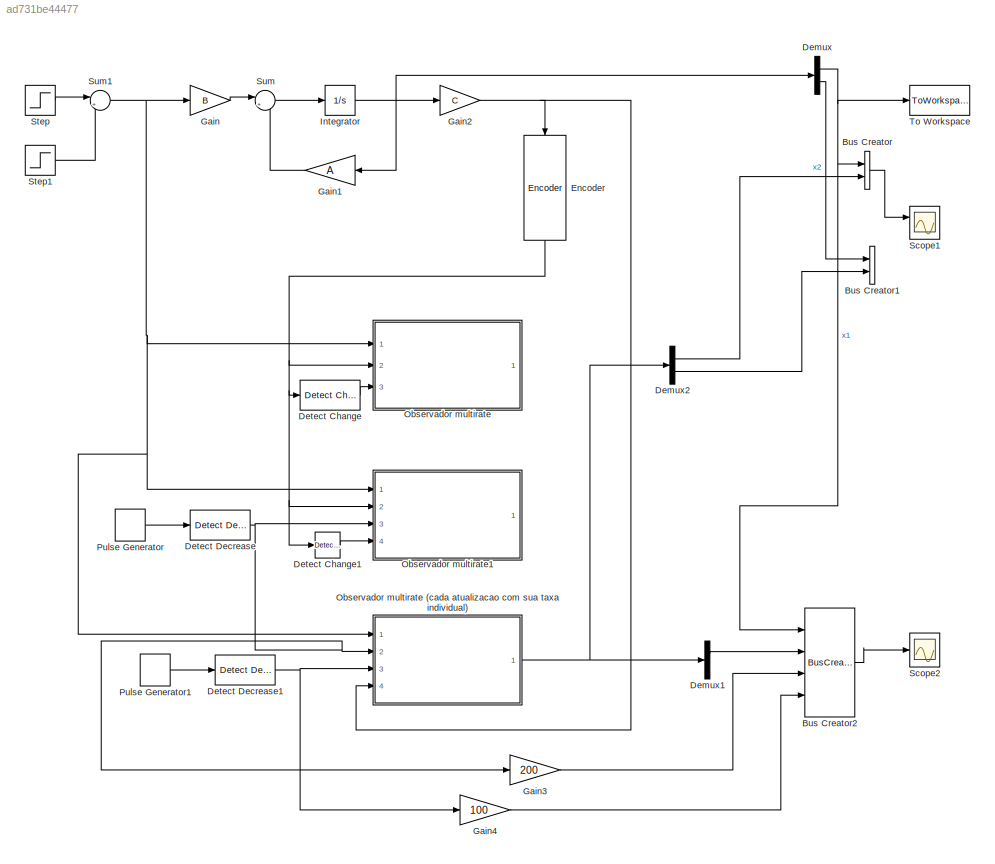
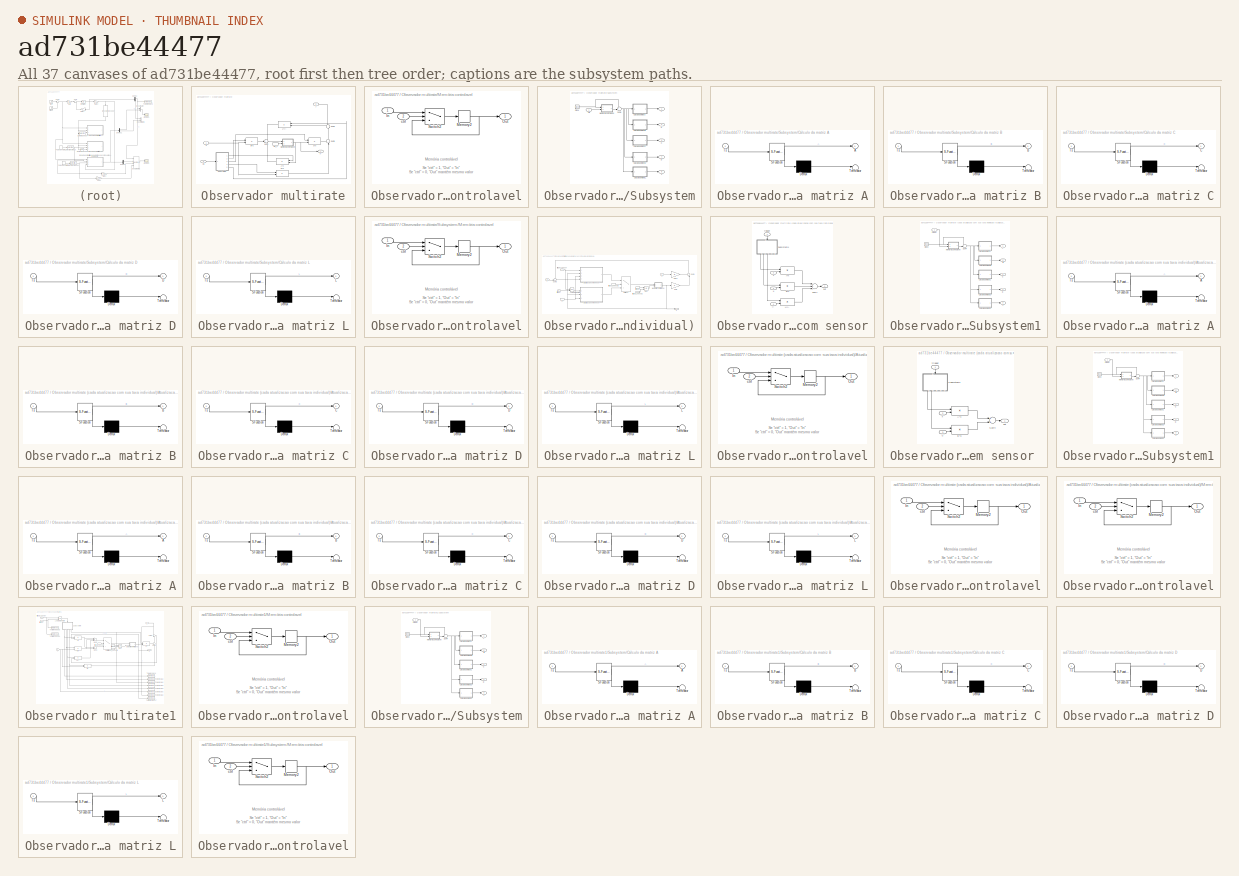
[diagram: thumbnail index - all 37 canvases of the model, root first then tree order]
MODEL slx_ad731be44477
KIND model
BLOCK [BusCreator] Bus Creator
  DisplayOption = bar
  Inputs = 2
  Ports = [2, 1]
BLOCK [BusCreator] Bus Creator1
  DisplayOption = bar
  Inputs = 2
  Ports = [2, 1]
BLOCK [BusCreator] Bus Creator2
  DisplayOption = bar
  Ports = [4, 1]
BLOCK [Demux] Demux
  DisplayOption = bar
  Outputs = 2
  Ports = [1, 2]
BLOCK [Demux] Demux1
  DisplayOption = bar
  Outputs = 2
  Ports = [1, 2]
BLOCK [Demux] Demux2
  DisplayOption = bar
  Outputs = 2
  Ports = [1, 2]
BLOCK [Reference] Detect Change  REF=simulink/Logic and Bit
Operations/Detect
Change
  InputProcessing = Inherited
  OutDataTypeStr = boolean
  Ports = [1, 1]
  SourceBlock = simulink/Logic and Bit\nOperations/Detect\nChange
  SourceType = Detect Change
  vinit = 0
BLOCK [Reference] Detect Change1  REF=simulink/Logic and Bit
Operations/Detect
Change
  InputProcessing = Inherited
  OutDataTypeStr = boolean
  Ports = [1, 1]
  SourceBlock = simulink/Logic and Bit\nOperations/Detect\nChange
  SourceType = Detect Change
  vinit = 0
BLOCK [Reference] Detect Decrease  REF=simulink/Logic and Bit
Operations/Detect
Decrease
  InputProcessing = Inherited
  OutDataTypeStr = boolean
  Ports = [1, 1]
  SourceBlock = simulink/Logic and Bit\nOperations/Detect\nDecrease
  SourceType = Detect Decrease
  vinit = 0.0
BLOCK [Reference] Detect Decrease1  REF=simulink/Logic and Bit
Operations/Detect
Decrease
  InputProcessing = Inherited
  OutDataTypeStr = boolean
  Ports = [1, 1]
  SourceBlock = simulink/Logic and Bit\nOperations/Detect\nDecrease
  SourceType = Detect Decrease
  vinit = 0.0
BLOCK [Reference] Encoder  REF=Encoder/Encoder
  Nr = 10
  Ports = [1, 1]
  SourceBlock = Encoder/Encoder
  SourceType = Encoder de quadratura
BLOCK [Gain] Gain
  Gain = B
  Multiplication = Matrix(K*u)
  OutDataTypeStr = Inherit: Inherit via internal rule
  ParamDataTypeStr = Inherit: Inherit via internal rule
  SaturateOnIntegerOverflow = off
BLOCK [Gain] Gain1
  Gain = A
  Multiplication = Matrix(K*u)
  OutDataTypeStr = Inherit: Inherit via internal rule
  ParamDataTypeStr = Inherit: Inherit via internal rule
  SaturateOnIntegerOverflow = off
BLOCK [Gain] Gain2
  Gain = C
  Multiplication = Matrix(K*u)
  OutDataTypeStr = Inherit: Inherit via internal rule
  ParamDataTypeStr = Inherit: Inherit via internal rule
  SaturateOnIntegerOverflow = off
BLOCK [Gain] Gain3
  Gain = 200
  OutDataTypeStr = Inherit: Inherit via back propagation
  ParamDataTypeStr = Inherit: Inherit via internal rule
  SaturateOnIntegerOverflow = off
BLOCK [Gain] Gain4
  Gain = 100
  OutDataTypeStr = Inherit: Inherit via back propagation
  ParamDataTypeStr = Inherit: Inherit via internal rule
  SaturateOnIntegerOverflow = off
BLOCK [Integrator] Integrator
  Ports = [1, 1]
BLOCK [SubSystem] Observador multirate
  FunctionWithSeparateData = off
  MaskHideContents = off
  MinAlgLoopOccurrences = off
  Opaque = off
  Ports = [3, 1]
  PropExecContextOutsideSubsystem = off
  RTWSystemCode = Auto
  RequestExecContextInheritance = off
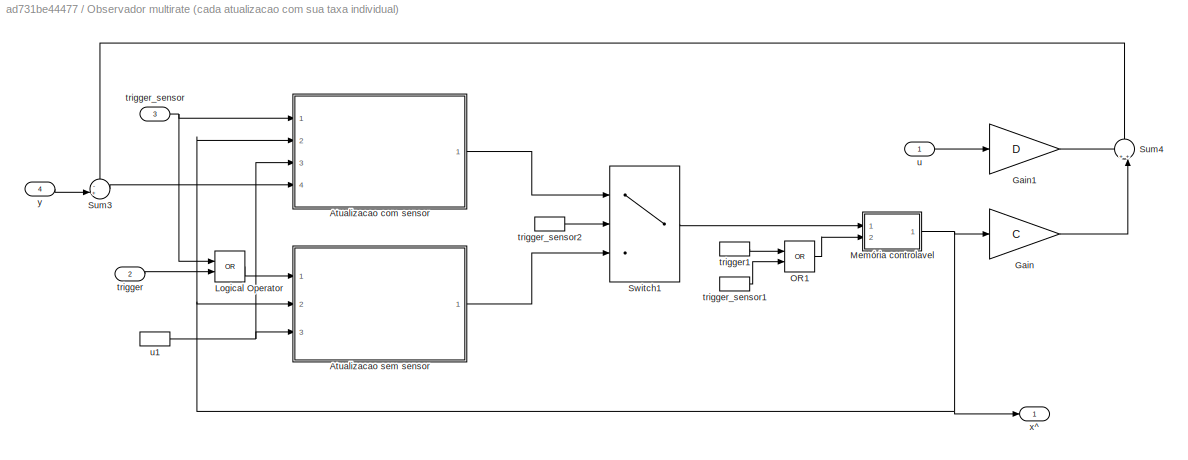
BLOCK [SubSystem] Observador multirate (cada atualizacao com sua taxa individual)
  FunctionWithSeparateData = off
  MaskHideContents = off
  MinAlgLoopOccurrences = off
  Opaque = off
  Ports = [4, 1]
  PropExecContextOutsideSubsystem = off
  RTWSystemCode = Auto
  RequestExecContextInheritance = off
BLOCK [SubSystem] Observador multirate (cada atualizacao com sua taxa individual)/Atualizacao com sensor
  FunctionWithSeparateData = off
  MaskHideContents = off
  MinAlgLoopOccurrences = off
  Opaque = off
  Ports = [4, 1]
  PropExecContextOutsideSubsystem = off
  RTWSystemCode = Auto
  RequestExecContextInheritance = off
BLOCK [Product] Observador multirate (cada atualizacao com sua taxa individual)/Atualizacao com sensor/A*x
  InputSameDT = off
  Multiplication = Matrix(*)
  OutDataTypeStr = Inherit: Inherit via internal rule
  Ports = [2, 1]
  SaturateOnIntegerOverflow = off
BLOCK [Product] Observador multirate (cada atualizacao com sua taxa individual)/Atualizacao com sensor/B*u
  InputSameDT = off
  Multiplication = Matrix(*)
  OutDataTypeStr = Inherit: Inherit via internal rule
  Ports = [2, 1]
  SaturateOnIntegerOverflow = off
BLOCK [Product] Observador multirate (cada atualizacao com sua taxa individual)/Atualizacao com sensor/L*y~
  InputSameDT = off
  Multiplication = Matrix(*)
  OutDataTypeStr = Inherit: Inherit via internal rule
  Ports = [2, 1]
  SaturateOnIntegerOverflow = off
BLOCK [SubSystem] Observador multirate (cada atualizacao com sua taxa individual)/Atualizacao com sensor/Subsystem1
  FunctionWithSeparateData = off
  MaskHideContents = off
  MinAlgLoopOccurrences = off
  Opaque = off
  Ports = [1, 5]
  PropExecContextOutsideSubsystem = off
  RTWSystemCode = Auto
  RequestExecContextInheritance = off
BLOCK [Outport] Observador multirate (cada atualizacao com sua taxa individual)/Atualizacao com sensor/Subsystem1/A
  IconDisplay = Port number
BLOCK [Outport] Observador multirate (cada atualizacao com sua taxa individual)/Atualizacao com sensor/Subsystem1/B
  IconDisplay = Port number
  Port = 2
BLOCK [Outport] Observador multirate (cada atualizacao com sua taxa individual)/Atualizacao com sensor/Subsystem1/C
  IconDisplay = Port number
  Port = 5
BLOCK [Clock] Observador multirate (cada atualizacao com sua taxa individual)/Atualizacao com sensor/Subsystem1/Clock
BLOCK [SubSystem] Observador multirate (cada atualizacao com sua taxa individual)/Atualizacao com sensor/Subsystem1/Cálculo da matriz A
  ErrorFcn = Stateflow.Translate.translate
  FunctionWithSeparateData = off
  MaskHideContents = off
  MinAlgLoopOccurrences = off
  Opaque = off
  PermitHierarchicalResolution = ExplicitOnly
  Ports = [1, 1]
  PropExecContextOutsideSubsystem = off
  RTWSystemCode = Auto
  RequestExecContextInheritance = off
  SFBlockType = MATLAB Function
  TreatAsAtomicUnit = on
BLOCK [Demux] Observador multirate (cada atualizacao com sua taxa individual)/Atualizacao com sensor/Subsystem1/Cálculo da matriz A/ Demux 
  Outputs = 1
  Ports = [1, 1]
BLOCK [S-Function] Observador multirate (cada atualizacao com sua taxa individual)/Atualizacao com sensor/Subsystem1/Cálculo da matriz A/ SFunction 
  EnableBusSupport = on
  FunctionName = sf_sfun
  PortCounts = [1 2]
  Ports = [1, 2]
  Tag = Stateflow S-Function observador_multirate 16
BLOCK [Terminator] Observador multirate (cada atualizacao com sua taxa individual)/Atualizacao com sensor/Subsystem1/Cálculo da matriz A/ Terminator 
BLOCK [Outport] Observador multirate (cada atualizacao com sua taxa individual)/Atualizacao com sensor/Subsystem1/Cálculo da matriz A/A
  IconDisplay = Port number
BLOCK [Inport] Observador multirate (cada atualizacao com sua taxa individual)/Atualizacao com sensor/Subsystem1/Cálculo da matriz A/Ts
  IconDisplay = Port number
BLOCK [SubSystem] Observador multirate (cada atualizacao com sua taxa individual)/Atualizacao com sensor/Subsystem1/Cálculo da matriz B
  ErrorFcn = Stateflow.Translate.translate
  FunctionWithSeparateData = off
  MaskHideContents = off
  MinAlgLoopOccurrences = off
  Opaque = off
  PermitHierarchicalResolution = ExplicitOnly
  Ports = [1, 1]
  PropExecContextOutsideSubsystem = off
  RTWSystemCode = Auto
  RequestExecContextInheritance = off
  SFBlockType = MATLAB Function
  TreatAsAtomicUnit = on
BLOCK [Demux] Observador multirate (cada atualizacao com sua taxa individual)/Atualizacao com sensor/Subsystem1/Cálculo da matriz B/ Demux 
  Outputs = 1
  Ports = [1, 1]
BLOCK [S-Function] Observador multirate (cada atualizacao com sua taxa individual)/Atualizacao com sensor/Subsystem1/Cálculo da matriz B/ SFunction 
  EnableBusSupport = on
  FunctionName = sf_sfun
  PortCounts = [1 2]
  Ports = [1, 2]
  Tag = Stateflow S-Function observador_multirate 17
BLOCK [Terminator] Observador multirate (cada atualizacao com sua taxa individual)/Atualizacao com sensor/Subsystem1/Cálculo da matriz B/ Terminator 
BLOCK [Outport] Observador multirate (cada atualizacao com sua taxa individual)/Atualizacao com sensor/Subsystem1/Cálculo da matriz B/B
  IconDisplay = Port number
BLOCK [Inport] Observador multirate (cada atualizacao com sua taxa individual)/Atualizacao com sensor/Subsystem1/Cálculo da matriz B/Ts
  IconDisplay = Port number
BLOCK [SubSystem] Observador multirate (cada atualizacao com sua taxa individual)/Atualizacao com sensor/Subsystem1/Cálculo da matriz C
  ErrorFcn = Stateflow.Translate.translate
  FunctionWithSeparateData = off
  MaskHideContents = off
  MinAlgLoopOccurrences = off
  Opaque = off
  PermitHierarchicalResolution = ExplicitOnly
  Ports = [1, 1]
  PropExecContextOutsideSubsystem = off
  RTWSystemCode = Auto
  RequestExecContextInheritance = off
  SFBlockType = MATLAB Function
  TreatAsAtomicUnit = on
BLOCK [Demux] Observador multirate (cada atualizacao com sua taxa individual)/Atualizacao com sensor/Subsystem1/Cálculo da matriz C/ Demux 
  Outputs = 1
  Ports = [1, 1]
BLOCK [S-Function] Observador multirate (cada atualizacao com sua taxa individual)/Atualizacao com sensor/Subsystem1/Cálculo da matriz C/ SFunction 
  EnableBusSupport = on
  FunctionName = sf_sfun
  PortCounts = [1 2]
  Ports = [1, 2]
  Tag = Stateflow S-Function observador_multirate 18
BLOCK [Terminator] Observador multirate (cada atualizacao com sua taxa individual)/Atualizacao com sensor/Subsystem1/Cálculo da matriz C/ Terminator 
BLOCK [Outport] Observador multirate (cada atualizacao com sua taxa individual)/Atualizacao com sensor/Subsystem1/Cálculo da matriz C/C
  IconDisplay = Port number
BLOCK [Inport] Observador multirate (cada atualizacao com sua taxa individual)/Atualizacao com sensor/Subsystem1/Cálculo da matriz C/Ts
  IconDisplay = Port number
BLOCK [SubSystem] Observador multirate (cada atualizacao com sua taxa individual)/Atualizacao com sensor/Subsystem1/Cálculo da matriz D
  ErrorFcn = Stateflow.Translate.translate
  FunctionWithSeparateData = off
  MaskHideContents = off
  MinAlgLoopOccurrences = off
  Opaque = off
  PermitHierarchicalResolution = ExplicitOnly
  Ports = [1, 1]
  PropExecContextOutsideSubsystem = off
  RTWSystemCode = Auto
  RequestExecContextInheritance = off
  SFBlockType = MATLAB Function
  TreatAsAtomicUnit = on
BLOCK [Demux] Observador multirate (cada atualizacao com sua taxa individual)/Atualizacao com sensor/Subsystem1/Cálculo da matriz D/ Demux 
  Outputs = 1
  Ports = [1, 1]
BLOCK [S-Function] Observador multirate (cada atualizacao com sua taxa individual)/Atualizacao com sensor/Subsystem1/Cálculo da matriz D/ SFunction 
  EnableBusSupport = on
  FunctionName = sf_sfun
  PortCounts = [1 2]
  Ports = [1, 2]
  Tag = Stateflow S-Function observador_multirate 19
BLOCK [Terminator] Observador multirate (cada atualizacao com sua taxa individual)/Atualizacao com sensor/Subsystem1/Cálculo da matriz D/ Terminator 
BLOCK [Outport] Observador multirate (cada atualizacao com sua taxa individual)/Atualizacao com sensor/Subsystem1/Cálculo da matriz D/D
  IconDisplay = Port number
BLOCK [Inport] Observador multirate (cada atualizacao com sua taxa individual)/Atualizacao com sensor/Subsystem1/Cálculo da matriz D/Ts
  IconDisplay = Port number
BLOCK [SubSystem] Observador multirate (cada atualizacao com sua taxa individual)/Atualizacao com sensor/Subsystem1/Cálculo da matriz L
  ErrorFcn = Stateflow.Translate.translate
  FunctionWithSeparateData = off
  MaskHideContents = off
  MinAlgLoopOccurrences = off
  Opaque = off
  PermitHierarchicalResolution = ExplicitOnly
  Ports = [1, 1]
  PropExecContextOutsideSubsystem = off
  RTWSystemCode = Auto
  RequestExecContextInheritance = off
  SFBlockType = MATLAB Function
  TreatAsAtomicUnit = on
BLOCK [Demux] Observador multirate (cada atualizacao com sua taxa individual)/Atualizacao com sensor/Subsystem1/Cálculo da matriz L/ Demux 
  Outputs = 1
  Ports = [1, 1]
BLOCK [S-Function] Observador multirate (cada atualizacao com sua taxa individual)/Atualizacao com sensor/Subsystem1/Cálculo da matriz L/ SFunction 
  EnableBusSupport = on
  FunctionName = sf_sfun
  PortCounts = [1 2]
  Ports = [1, 2]
  Tag = Stateflow S-Function observador_multirate 20
BLOCK [Terminator] Observador multirate (cada atualizacao com sua taxa individual)/Atualizacao com sensor/Subsystem1/Cálculo da matriz L/ Terminator 
BLOCK [Outport] Observador multirate (cada atualizacao com sua taxa individual)/Atualizacao com sensor/Subsystem1/Cálculo da matriz L/L
  IconDisplay = Port number
BLOCK [Inport] Observador multirate (cada atualizacao com sua taxa individual)/Atualizacao com sensor/Subsystem1/Cálculo da matriz L/Ts
  IconDisplay = Port number
BLOCK [Outport] Observador multirate (cada atualizacao com sua taxa individual)/Atualizacao com sensor/Subsystem1/D
  IconDisplay = Port number
  Port = 4
BLOCK [Outport] Observador multirate (cada atualizacao com sua taxa individual)/Atualizacao com sensor/Subsystem1/L
  IconDisplay = Port number
  Port = 3
BLOCK [SubSystem] Observador multirate (cada atualizacao com sua taxa individual)/Atualizacao com sensor/Subsystem1/Memória controlavel
  FunctionWithSeparateData = off
  MaskHideContents = off
  MinAlgLoopOccurrences = off
  Opaque = off
  Ports = [2, 1]
  PropExecContextOutsideSubsystem = off
  RTWSystemCode = Auto
  RequestExecContextInheritance = off
BLOCK [Inport] Observador multirate (cada atualizacao com sua taxa individual)/Atualizacao com sensor/Subsystem1/Memória controlavel/In
  IconDisplay = Port number
BLOCK [Memory] Observador multirate (cada atualizacao com sua taxa individual)/Atualizacao com sensor/Subsystem1/Memória controlavel/Memory2
BLOCK [Outport] Observador multirate (cada atualizacao com sua taxa individual)/Atualizacao com sensor/Subsystem1/Memória controlavel/Out
  IconDisplay = Port number
BLOCK [Switch] Observador multirate (cada atualizacao com sua taxa individual)/Atualizacao com sensor/Subsystem1/Memória controlavel/Switch2
  InputSameDT = off
  SaturateOnIntegerOverflow = off
BLOCK [Inport] Observador multirate (cada atualizacao com sua taxa individual)/Atualizacao com sensor/Subsystem1/Memória controlavel/ctrl
  IconDisplay = Port number
  Port = 2
BLOCK [Sum] Observador multirate (cada atualizacao com sua taxa individual)/Atualizacao com sensor/Subsystem1/Sum4
  IconShape = round
  InputSameDT = off
  Inputs = +-|
  OutDataTypeStr = Inherit: Inherit via internal rule
  Ports = [2, 1]
  SaturateOnIntegerOverflow = off
BLOCK [Inport] Observador multirate (cada atualizacao com sua taxa individual)/Atualizacao com sensor/Subsystem1/trigger
  IconDisplay = Port number
BLOCK [Sum] Observador multirate (cada atualizacao com sua taxa individual)/Atualizacao com sensor/Sum4
  InputSameDT = off
  Inputs = +++
  OutDataTypeStr = Inherit: Inherit via internal rule
  Ports = [3, 1]
  SaturateOnIntegerOverflow = off
BLOCK [Outport] Observador multirate (cada atualizacao com sua taxa individual)/Atualizacao com sensor/out
  IconDisplay = Port number
BLOCK [Inport] Observador multirate (cada atualizacao com sua taxa individual)/Atualizacao com sensor/trigger
  IconDisplay = Port number
BLOCK [Inport] Observador multirate (cada atualizacao com sua taxa individual)/Atualizacao com sensor/u
  IconDisplay = Port number
  Port = 3
BLOCK [Inport] Observador multirate (cada atualizacao com sua taxa individual)/Atualizacao com sensor/x
  IconDisplay = Port number
  Port = 2
BLOCK [Inport] Observador multirate (cada atualizacao com sua taxa individual)/Atualizacao com sensor/y~
  IconDisplay = Port number
  Port = 4
BLOCK [SubSystem] Observador multirate (cada atualizacao com sua taxa individual)/Atualizacao sem sensor 
  FunctionWithSeparateData = off
  MaskHideContents = off
  MinAlgLoopOccurrences = off
  Opaque = off
  Ports = [3, 1]
  PropExecContextOutsideSubsystem = off
  RTWSystemCode = Auto
  RequestExecContextInheritance = off
BLOCK [Product] Observador multirate (cada atualizacao com sua taxa individual)/Atualizacao sem sensor /A*x
  InputSameDT = off
  Multiplication = Matrix(*)
  OutDataTypeStr = Inherit: Inherit via internal rule
  Ports = [2, 1]
  SaturateOnIntegerOverflow = off
BLOCK [Product] Observador multirate (cada atualizacao com sua taxa individual)/Atualizacao sem sensor /B*u
  InputSameDT = off
  Multiplication = Matrix(*)
  OutDataTypeStr = Inherit: Inherit via internal rule
  Ports = [2, 1]
  SaturateOnIntegerOverflow = off
BLOCK [SubSystem] Observador multirate (cada atualizacao com sua taxa individual)/Atualizacao sem sensor /Subsystem1
  FunctionWithSeparateData = off
  MaskHideContents = off
  MinAlgLoopOccurrences = off
  Opaque = off
  Ports = [1, 5]
  PropExecContextOutsideSubsystem = off
  RTWSystemCode = Auto
  RequestExecContextInheritance = off
BLOCK [Outport] Observador multirate (cada atualizacao com sua taxa individual)/Atualizacao sem sensor /Subsystem1/A
  IconDisplay = Port number
BLOCK [Outport] Observador multirate (cada atualizacao com sua taxa individual)/Atualizacao sem sensor /Subsystem1/B
  IconDisplay = Port number
  Port = 2
BLOCK [Outport] Observador multirate (cada atualizacao com sua taxa individual)/Atualizacao sem sensor /Subsystem1/C
  IconDisplay = Port number
  Port = 5
BLOCK [Clock] Observador multirate (cada atualizacao com sua taxa individual)/Atualizacao sem sensor /Subsystem1/Clock
BLOCK [SubSystem] Observador multirate (cada atualizacao com sua taxa individual)/Atualizacao sem sensor /Subsystem1/Cálculo da matriz A
  ErrorFcn = Stateflow.Translate.translate
  FunctionWithSeparateData = off
  MaskHideContents = off
  MinAlgLoopOccurrences = off
  Opaque = off
  PermitHierarchicalResolution = ExplicitOnly
  Ports = [1, 1]
  PropExecContextOutsideSubsystem = off
  RTWSystemCode = Auto
  RequestExecContextInheritance = off
  SFBlockType = MATLAB Function
  TreatAsAtomicUnit = on
BLOCK [Demux] Observador multirate (cada atualizacao com sua taxa individual)/Atualizacao sem sensor /Subsystem1/Cálculo da matriz A/ Demux 
  Outputs = 1
  Ports = [1, 1]
BLOCK [S-Function] Observador multirate (cada atualizacao com sua taxa individual)/Atualizacao sem sensor /Subsystem1/Cálculo da matriz A/ SFunction 
  EnableBusSupport = on
  FunctionName = sf_sfun
  PortCounts = [1 2]
  Ports = [1, 2]
  Tag = Stateflow S-Function observador_multirate 21
BLOCK [Terminator] Observador multirate (cada atualizacao com sua taxa individual)/Atualizacao sem sensor /Subsystem1/Cálculo da matriz A/ Terminator 
BLOCK [Outport] Observador multirate (cada atualizacao com sua taxa individual)/Atualizacao sem sensor /Subsystem1/Cálculo da matriz A/A
  IconDisplay = Port number
BLOCK [Inport] Observador multirate (cada atualizacao com sua taxa individual)/Atualizacao sem sensor /Subsystem1/Cálculo da matriz A/Ts
  IconDisplay = Port number
BLOCK [SubSystem] Observador multirate (cada atualizacao com sua taxa individual)/Atualizacao sem sensor /Subsystem1/Cálculo da matriz B
  ErrorFcn = Stateflow.Translate.translate
  FunctionWithSeparateData = off
  MaskHideContents = off
  MinAlgLoopOccurrences = off
  Opaque = off
  PermitHierarchicalResolution = ExplicitOnly
  Ports = [1, 1]
  PropExecContextOutsideSubsystem = off
  RTWSystemCode = Auto
  RequestExecContextInheritance = off
  SFBlockType = MATLAB Function
  TreatAsAtomicUnit = on
BLOCK [Demux] Observador multirate (cada atualizacao com sua taxa individual)/Atualizacao sem sensor /Subsystem1/Cálculo da matriz B/ Demux 
  Outputs = 1
  Ports = [1, 1]
BLOCK [S-Function] Observador multirate (cada atualizacao com sua taxa individual)/Atualizacao sem sensor /Subsystem1/Cálculo da matriz B/ SFunction 
  EnableBusSupport = on
  FunctionName = sf_sfun
  PortCounts = [1 2]
  Ports = [1, 2]
  Tag = Stateflow S-Function observador_multirate 22
BLOCK [Terminator] Observador multirate (cada atualizacao com sua taxa individual)/Atualizacao sem sensor /Subsystem1/Cálculo da matriz B/ Terminator 
BLOCK [Outport] Observador multirate (cada atualizacao com sua taxa individual)/Atualizacao sem sensor /Subsystem1/Cálculo da matriz B/B
  IconDisplay = Port number
BLOCK [Inport] Observador multirate (cada atualizacao com sua taxa individual)/Atualizacao sem sensor /Subsystem1/Cálculo da matriz B/Ts
  IconDisplay = Port number
BLOCK [SubSystem] Observador multirate (cada atualizacao com sua taxa individual)/Atualizacao sem sensor /Subsystem1/Cálculo da matriz C
  ErrorFcn = Stateflow.Translate.translate
  FunctionWithSeparateData = off
  MaskHideContents = off
  MinAlgLoopOccurrences = off
  Opaque = off
  PermitHierarchicalResolution = ExplicitOnly
  Ports = [1, 1]
  PropExecContextOutsideSubsystem = off
  RTWSystemCode = Auto
  RequestExecContextInheritance = off
  SFBlockType = MATLAB Function
  TreatAsAtomicUnit = on
BLOCK [Demux] Observador multirate (cada atualizacao com sua taxa individual)/Atualizacao sem sensor /Subsystem1/Cálculo da matriz C/ Demux 
  Outputs = 1
  Ports = [1, 1]
BLOCK [S-Function] Observador multirate (cada atualizacao com sua taxa individual)/Atualizacao sem sensor /Subsystem1/Cálculo da matriz C/ SFunction 
  EnableBusSupport = on
  FunctionName = sf_sfun
  PortCounts = [1 2]
  Ports = [1, 2]
  Tag = Stateflow S-Function observador_multirate 23
BLOCK [Terminator] Observador multirate (cada atualizacao com sua taxa individual)/Atualizacao sem sensor /Subsystem1/Cálculo da matriz C/ Terminator 
BLOCK [Outport] Observador multirate (cada atualizacao com sua taxa individual)/Atualizacao sem sensor /Subsystem1/Cálculo da matriz C/C
  IconDisplay = Port number
BLOCK [Inport] Observador multirate (cada atualizacao com sua taxa individual)/Atualizacao sem sensor /Subsystem1/Cálculo da matriz C/Ts
  IconDisplay = Port number
BLOCK [SubSystem] Observador multirate (cada atualizacao com sua taxa individual)/Atualizacao sem sensor /Subsystem1/Cálculo da matriz D
  ErrorFcn = Stateflow.Translate.translate
  FunctionWithSeparateData = off
  MaskHideContents = off
  MinAlgLoopOccurrences = off
  Opaque = off
  PermitHierarchicalResolution = ExplicitOnly
  Ports = [1, 1]
  PropExecContextOutsideSubsystem = off
  RTWSystemCode = Auto
  RequestExecContextInheritance = off
  SFBlockType = MATLAB Function
  TreatAsAtomicUnit = on
BLOCK [Demux] Observador multirate (cada atualizacao com sua taxa individual)/Atualizacao sem sensor /Subsystem1/Cálculo da matriz D/ Demux 
  Outputs = 1
  Ports = [1, 1]
BLOCK [S-Function] Observador multirate (cada atualizacao com sua taxa individual)/Atualizacao sem sensor /Subsystem1/Cálculo da matriz D/ SFunction 
  EnableBusSupport = on
  FunctionName = sf_sfun
  PortCounts = [1 2]
  Ports = [1, 2]
  Tag = Stateflow S-Function observador_multirate 24
BLOCK [Terminator] Observador multirate (cada atualizacao com sua taxa individual)/Atualizacao sem sensor /Subsystem1/Cálculo da matriz D/ Terminator 
BLOCK [Outport] Observador multirate (cada atualizacao com sua taxa individual)/Atualizacao sem sensor /Subsystem1/Cálculo da matriz D/D
  IconDisplay = Port number
BLOCK [Inport] Observador multirate (cada atualizacao com sua taxa individual)/Atualizacao sem sensor /Subsystem1/Cálculo da matriz D/Ts
  IconDisplay = Port number
BLOCK [SubSystem] Observador multirate (cada atualizacao com sua taxa individual)/Atualizacao sem sensor /Subsystem1/Cálculo da matriz L
  ErrorFcn = Stateflow.Translate.translate
  FunctionWithSeparateData = off
  MaskHideContents = off
  MinAlgLoopOccurrences = off
  Opaque = off
  PermitHierarchicalResolution = ExplicitOnly
  Ports = [1, 1]
  PropExecContextOutsideSubsystem = off
  RTWSystemCode = Auto
  RequestExecContextInheritance = off
  SFBlockType = MATLAB Function
  TreatAsAtomicUnit = on
BLOCK [Demux] Observador multirate (cada atualizacao com sua taxa individual)/Atualizacao sem sensor /Subsystem1/Cálculo da matriz L/ Demux 
  Outputs = 1
  Ports = [1, 1]
BLOCK [S-Function] Observador multirate (cada atualizacao com sua taxa individual)/Atualizacao sem sensor /Subsystem1/Cálculo da matriz L/ SFunction 
  EnableBusSupport = on
  FunctionName = sf_sfun
  PortCounts = [1 2]
  Ports = [1, 2]
  Tag = Stateflow S-Function observador_multirate 25
BLOCK [Terminator] Observador multirate (cada atualizacao com sua taxa individual)/Atualizacao sem sensor /Subsystem1/Cálculo da matriz L/ Terminator 
BLOCK [Outport] Observador multirate (cada atualizacao com sua taxa individual)/Atualizacao sem sensor /Subsystem1/Cálculo da matriz L/L
  IconDisplay = Port number
BLOCK [Inport] Observador multirate (cada atualizacao com sua taxa individual)/Atualizacao sem sensor /Subsystem1/Cálculo da matriz L/Ts
  IconDisplay = Port number
BLOCK [Outport] Observador multirate (cada atualizacao com sua taxa individual)/Atualizacao sem sensor /Subsystem1/D
  IconDisplay = Port number
  Port = 4
BLOCK [Outport] Observador multirate (cada atualizacao com sua taxa individual)/Atualizacao sem sensor /Subsystem1/L
  IconDisplay = Port number
  Port = 3
BLOCK [SubSystem] Observador multirate (cada atualizacao com sua taxa individual)/Atualizacao sem sensor /Subsystem1/Memória controlavel
  FunctionWithSeparateData = off
  MaskHideContents = off
  MinAlgLoopOccurrences = off
  Opaque = off
  Ports = [2, 1]
  PropExecContextOutsideSubsystem = off
  RTWSystemCode = Auto
  RequestExecContextInheritance = off
BLOCK [Inport] Observador multirate (cada atualizacao com sua taxa individual)/Atualizacao sem sensor /Subsystem1/Memória controlavel/In
  IconDisplay = Port number
BLOCK [Memory] Observador multirate (cada atualizacao com sua taxa individual)/Atualizacao sem sensor /Subsystem1/Memória controlavel/Memory2
BLOCK [Outport] Observador multirate (cada atualizacao com sua taxa individual)/Atualizacao sem sensor /Subsystem1/Memória controlavel/Out
  IconDisplay = Port number
BLOCK [Switch] Observador multirate (cada atualizacao com sua taxa individual)/Atualizacao sem sensor /Subsystem1/Memória controlavel/Switch2
  InputSameDT = off
  SaturateOnIntegerOverflow = off
BLOCK [Inport] Observador multirate (cada atualizacao com sua taxa individual)/Atualizacao sem sensor /Subsystem1/Memória controlavel/ctrl
  IconDisplay = Port number
  Port = 2
BLOCK [Sum] Observador multirate (cada atualizacao com sua taxa individual)/Atualizacao sem sensor /Subsystem1/Sum4
  IconShape = round
  InputSameDT = off
  Inputs = +-|
  OutDataTypeStr = Inherit: Inherit via internal rule
  Ports = [2, 1]
  SaturateOnIntegerOverflow = off
BLOCK [Inport] Observador multirate (cada atualizacao com sua taxa individual)/Atualizacao sem sensor /Subsystem1/trigger
  IconDisplay = Port number
BLOCK [Sum] Observador multirate (cada atualizacao com sua taxa individual)/Atualizacao sem sensor /Sum4
  InputSameDT = off
  OutDataTypeStr = Inherit: Inherit via internal rule
  Ports = [2, 1]
  SaturateOnIntegerOverflow = off
BLOCK [Outport] Observador multirate (cada atualizacao com sua taxa individual)/Atualizacao sem sensor /out
  IconDisplay = Port number
BLOCK [Inport] Observador multirate (cada atualizacao com sua taxa individual)/Atualizacao sem sensor /trigger
  IconDisplay = Port number
BLOCK [Inport] Observador multirate (cada atualizacao com sua taxa individual)/Atualizacao sem sensor /u
  IconDisplay = Port number
  Port = 3
BLOCK [Inport] Observador multirate (cada atualizacao com sua taxa individual)/Atualizacao sem sensor /x
  IconDisplay = Port number
  Port = 2
BLOCK [Gain] Observador multirate (cada atualizacao com sua taxa individual)/Gain
  Gain = C
  Multiplication = Matrix(K*u)
  OutDataTypeStr = Inherit: Inherit via internal rule
  ParamDataTypeStr = Inherit: Inherit via internal rule
  SaturateOnIntegerOverflow = off
BLOCK [Gain] Observador multirate (cada atualizacao com sua taxa individual)/Gain1
  Gain = D
  Multiplication = Matrix(K*u)
  OutDataTypeStr = Inherit: Inherit via internal rule
  ParamDataTypeStr = Inherit: Inherit via internal rule
  SaturateOnIntegerOverflow = off
BLOCK [Logic] Observador multirate (cada atualizacao com sua taxa individual)/Logical Operator
  AllPortsSameDT = off
  Operator = OR
  OutDataTypeStr = boolean
  Ports = [2, 1]
BLOCK [SubSystem] Observador multirate (cada atualizacao com sua taxa individual)/Memória controlavel
  FunctionWithSeparateData = off
  MaskHideContents = off
  MinAlgLoopOccurrences = off
  Opaque = off
  Ports = [2, 1]
  PropExecContextOutsideSubsystem = off
  RTWSystemCode = Auto
  RequestExecContextInheritance = off
BLOCK [Inport] Observador multirate (cada atualizacao com sua taxa individual)/Memória controlavel/In
  IconDisplay = Port number
BLOCK [Memory] Observador multirate (cada atualizacao com sua taxa individual)/Memória controlavel/Memory2
BLOCK [Outport] Observador multirate (cada atualizacao com sua taxa individual)/Memória controlavel/Out
  IconDisplay = Port number
BLOCK [Switch] Observador multirate (cada atualizacao com sua taxa individual)/Memória controlavel/Switch2
  InputSameDT = off
  SaturateOnIntegerOverflow = off
BLOCK [Inport] Observador multirate (cada atualizacao com sua taxa individual)/Memória controlavel/ctrl
  IconDisplay = Port number
  Port = 2
BLOCK [Logic] Observador multirate (cada atualizacao com sua taxa individual)/OR1
  AllPortsSameDT = off
  Operator = OR
  OutDataTypeStr = boolean
  Ports = [2, 1]
BLOCK [Sum] Observador multirate (cada atualizacao com sua taxa individual)/Sum3
  IconShape = round
  InputSameDT = off
  Inputs = -+|
  OutDataTypeStr = Inherit: Inherit via internal rule
  Ports = [2, 1]
  SaturateOnIntegerOverflow = off
BLOCK [Sum] Observador multirate (cada atualizacao com sua taxa individual)/Sum4
  IconShape = round
  InputSameDT = off
  Inputs = ++|
  OutDataTypeStr = Inherit: Inherit via internal rule
  Ports = [2, 1]
  SaturateOnIntegerOverflow = off
BLOCK [Switch] Observador multirate (cada atualizacao com sua taxa individual)/Switch1
  Criteria = u2 > Threshold
  InputSameDT = off
  SaturateOnIntegerOverflow = off
BLOCK [Inport] Observador multirate (cada atualizacao com sua taxa individual)/trigger
  IconDisplay = Port number
  Port = 2
BLOCK [InportShadow] Observador multirate (cada atualizacao com sua taxa individual)/trigger1
  IconDisplay = Port number
  LatchByDelayingOutsideSignal = off
  LatchInputForFeedbackSignals = off
  Port = 2
BLOCK [Inport] Observador multirate (cada atualizacao com sua taxa individual)/trigger_sensor
  IconDisplay = Port number
  Port = 3
BLOCK [InportShadow] Observador multirate (cada atualizacao com sua taxa individual)/trigger_sensor1
  IconDisplay = Port number
  LatchByDelayingOutsideSignal = off
  LatchInputForFeedbackSignals = off
  Port = 3
BLOCK [InportShadow] Observador multirate (cada atualizacao com sua taxa individual)/trigger_sensor2
  IconDisplay = Port number
  LatchByDelayingOutsideSignal = off
  LatchInputForFeedbackSignals = off
  Port = 3
BLOCK [Inport] Observador multirate (cada atualizacao com sua taxa individual)/u
  IconDisplay = Port number
BLOCK [InportShadow] Observador multirate (cada atualizacao com sua taxa individual)/u1
  IconDisplay = Port number
  LatchByDelayingOutsideSignal = off
  LatchInputForFeedbackSignals = off
BLOCK [Outport] Observador multirate (cada atualizacao com sua taxa individual)/x^
  IconDisplay = Port number
BLOCK [Inport] Observador multirate (cada atualizacao com sua taxa individual)/y
  IconDisplay = Port number
  Port = 4
BLOCK [Product] Observador multirate/A*x
  InputSameDT = off
  Multiplication = Matrix(*)
  OutDataTypeStr = Inherit: Inherit via internal rule
  Ports = [2, 1]
  SaturateOnIntegerOverflow = off
BLOCK [Product] Observador multirate/B*u
  InputSameDT = off
  Multiplication = Matrix(*)
  OutDataTypeStr = Inherit: Inherit via internal rule
  Ports = [2, 1]
  SaturateOnIntegerOverflow = off
BLOCK [Product] Observador multirate/C*x
  InputSameDT = off
  Multiplication = Matrix(*)
  OutDataTypeStr = Inherit: Inherit via internal rule
  Ports = [2, 1]
  SaturateOnIntegerOverflow = off
BLOCK [Product] Observador multirate/D*u
  InputSameDT = off
  Multiplication = Matrix(*)
  OutDataTypeStr = Inherit: Inherit via internal rule
  Ports = [2, 1]
  SaturateOnIntegerOverflow = off
BLOCK [Product] Observador multirate/L*y~
  InputSameDT = off
  Multiplication = Matrix(*)
  OutDataTypeStr = Inherit: Inherit via internal rule
  Ports = [2, 1]
  SaturateOnIntegerOverflow = off
BLOCK [SubSystem] Observador multirate/Memória controlavel
  FunctionWithSeparateData = off
  MaskHideContents = off
  MinAlgLoopOccurrences = off
  Opaque = off
  Ports = [2, 1]
  PropExecContextOutsideSubsystem = off
  RTWSystemCode = Auto
  RequestExecContextInheritance = off
BLOCK [Inport] Observador multirate/Memória controlavel/In
  IconDisplay = Port number
BLOCK [Memory] Observador multirate/Memória controlavel/Memory2
BLOCK [Outport] Observador multirate/Memória controlavel/Out
  IconDisplay = Port number
BLOCK [Switch] Observador multirate/Memória controlavel/Switch2
  InputSameDT = off
  SaturateOnIntegerOverflow = off
BLOCK [Inport] Observador multirate/Memória controlavel/ctrl
  IconDisplay = Port number
  Port = 2
BLOCK [SubSystem] Observador multirate/Subsystem
  FunctionWithSeparateData = off
  MaskHideContents = off
  MinAlgLoopOccurrences = off
  Opaque = off
  Ports = [1, 5]
  PropExecContextOutsideSubsystem = off
  RTWSystemCode = Auto
  RequestExecContextInheritance = off
BLOCK [Outport] Observador multirate/Subsystem/A
  IconDisplay = Port number
BLOCK [Outport] Observador multirate/Subsystem/B
  IconDisplay = Port number
  Port = 2
BLOCK [Outport] Observador multirate/Subsystem/C
  IconDisplay = Port number
  Port = 3
BLOCK [Clock] Observador multirate/Subsystem/Clock
BLOCK [SubSystem] Observador multirate/Subsystem/Cálculo da matriz A
  ErrorFcn = Stateflow.Translate.translate
  FunctionWithSeparateData = off
  MaskHideContents = off
  MinAlgLoopOccurrences = off
  Opaque = off
  PermitHierarchicalResolution = ExplicitOnly
  Ports = [1, 1]
  PropExecContextOutsideSubsystem = off
  RTWSystemCode = Auto
  RequestExecContextInheritance = off
  SFBlockType = MATLAB Function
  TreatAsAtomicUnit = on
BLOCK [Demux] Observador multirate/Subsystem/Cálculo da matriz A/ Demux 
  Outputs = 1
  Ports = [1, 1]
BLOCK [S-Function] Observador multirate/Subsystem/Cálculo da matriz A/ SFunction 
  EnableBusSupport = on
  FunctionName = sf_sfun
  PortCounts = [1 2]
  Ports = [1, 2]
  Tag = Stateflow S-Function observador_multirate 2
BLOCK [Terminator] Observador multirate/Subsystem/Cálculo da matriz A/ Terminator 
BLOCK [Outport] Observador multirate/Subsystem/Cálculo da matriz A/A
  IconDisplay = Port number
BLOCK [Inport] Observador multirate/Subsystem/Cálculo da matriz A/Ts
  IconDisplay = Port number
BLOCK [SubSystem] Observador multirate/Subsystem/Cálculo da matriz B
  ErrorFcn = Stateflow.Translate.translate
  FunctionWithSeparateData = off
  MaskHideContents = off
  MinAlgLoopOccurrences = off
  Opaque = off
  PermitHierarchicalResolution = ExplicitOnly
  Ports = [1, 1]
  PropExecContextOutsideSubsystem = off
  RTWSystemCode = Auto
  RequestExecContextInheritance = off
  SFBlockType = MATLAB Function
  TreatAsAtomicUnit = on
BLOCK [Demux] Observador multirate/Subsystem/Cálculo da matriz B/ Demux 
  Outputs = 1
  Ports = [1, 1]
BLOCK [S-Function] Observador multirate/Subsystem/Cálculo da matriz B/ SFunction 
  EnableBusSupport = on
  FunctionName = sf_sfun
  PortCounts = [1 2]
  Ports = [1, 2]
  Tag = Stateflow S-Function observador_multirate 1
BLOCK [Terminator] Observador multirate/Subsystem/Cálculo da matriz B/ Terminator 
BLOCK [Outport] Observador multirate/Subsystem/Cálculo da matriz B/B
  IconDisplay = Port number
BLOCK [Inport] Observador multirate/Subsystem/Cálculo da matriz B/Ts
  IconDisplay = Port number
BLOCK [SubSystem] Observador multirate/Subsystem/Cálculo da matriz C
  ErrorFcn = Stateflow.Translate.translate
  FunctionWithSeparateData = off
  MaskHideContents = off
  MinAlgLoopOccurrences = off
  Opaque = off
  PermitHierarchicalResolution = ExplicitOnly
  Ports = [1, 1]
  PropExecContextOutsideSubsystem = off
  RTWSystemCode = Auto
  RequestExecContextInheritance = off
  SFBlockType = MATLAB Function
  TreatAsAtomicUnit = on
BLOCK [Demux] Observador multirate/Subsystem/Cálculo da matriz C/ Demux 
  Outputs = 1
  Ports = [1, 1]
BLOCK [S-Function] Observador multirate/Subsystem/Cálculo da matriz C/ SFunction 
  EnableBusSupport = on
  FunctionName = sf_sfun
  PortCounts = [1 2]
  Ports = [1, 2]
  Tag = Stateflow S-Function observador_multirate 3
BLOCK [Terminator] Observador multirate/Subsystem/Cálculo da matriz C/ Terminator 
BLOCK [Outport] Observador multirate/Subsystem/Cálculo da matriz C/C
  IconDisplay = Port number
BLOCK [Inport] Observador multirate/Subsystem/Cálculo da matriz C/Ts
  IconDisplay = Port number
BLOCK [SubSystem] Observador multirate/Subsystem/Cálculo da matriz D
  ErrorFcn = Stateflow.Translate.translate
  FunctionWithSeparateData = off
  MaskHideContents = off
  MinAlgLoopOccurrences = off
  Opaque = off
  PermitHierarchicalResolution = ExplicitOnly
  Ports = [1, 1]
  PropExecContextOutsideSubsystem = off
  RTWSystemCode = Auto
  RequestExecContextInheritance = off
  SFBlockType = MATLAB Function
  TreatAsAtomicUnit = on
BLOCK [Demux] Observador multirate/Subsystem/Cálculo da matriz D/ Demux 
  Outputs = 1
  Ports = [1, 1]
BLOCK [S-Function] Observador multirate/Subsystem/Cálculo da matriz D/ SFunction 
  EnableBusSupport = on
  FunctionName = sf_sfun
  PortCounts = [1 2]
  Ports = [1, 2]
  Tag = Stateflow S-Function observador_multirate 4
BLOCK [Terminator] Observador multirate/Subsystem/Cálculo da matriz D/ Terminator 
BLOCK [Outport] Observador multirate/Subsystem/Cálculo da matriz D/D
  IconDisplay = Port number
BLOCK [Inport] Observador multirate/Subsystem/Cálculo da matriz D/Ts
  IconDisplay = Port number
BLOCK [SubSystem] Observador multirate/Subsystem/Cálculo da matriz L
  ErrorFcn = Stateflow.Translate.translate
  FunctionWithSeparateData = off
  MaskHideContents = off
  MinAlgLoopOccurrences = off
  Opaque = off
  PermitHierarchicalResolution = ExplicitOnly
  Ports = [1, 1]
  PropExecContextOutsideSubsystem = off
  RTWSystemCode = Auto
  RequestExecContextInheritance = off
  SFBlockType = MATLAB Function
  TreatAsAtomicUnit = on
BLOCK [Demux] Observador multirate/Subsystem/Cálculo da matriz L/ Demux 
  Outputs = 1
  Ports = [1, 1]
BLOCK [S-Function] Observador multirate/Subsystem/Cálculo da matriz L/ SFunction 
  EnableBusSupport = on
  FunctionName = sf_sfun
  PortCounts = [1 2]
  Ports = [1, 2]
  Tag = Stateflow S-Function observador_multirate 5
BLOCK [Terminator] Observador multirate/Subsystem/Cálculo da matriz L/ Terminator 
BLOCK [Outport] Observador multirate/Subsystem/Cálculo da matriz L/L
  IconDisplay = Port number
BLOCK [Inport] Observador multirate/Subsystem/Cálculo da matriz L/Ts
  IconDisplay = Port number
BLOCK [Outport] Observador multirate/Subsystem/D
  IconDisplay = Port number
  Port = 4
BLOCK [Outport] Observador multirate/Subsystem/L
  IconDisplay = Port number
  Port = 5
BLOCK [SubSystem] Observador multirate/Subsystem/Memória controlavel
  FunctionWithSeparateData = off
  MaskHideContents = off
  MinAlgLoopOccurrences = off
  Opaque = off
  Ports = [2, 1]
  PropExecContextOutsideSubsystem = off
  RTWSystemCode = Auto
  RequestExecContextInheritance = off
BLOCK [Inport] Observador multirate/Subsystem/Memória controlavel/In
  IconDisplay = Port number
BLOCK [Memory] Observador multirate/Subsystem/Memória controlavel/Memory2
BLOCK [Outport] Observador multirate/Subsystem/Memória controlavel/Out
  IconDisplay = Port number
BLOCK [Switch] Observador multirate/Subsystem/Memória controlavel/Switch2
  InputSameDT = off
  SaturateOnIntegerOverflow = off
BLOCK [Inport] Observador multirate/Subsystem/Memória controlavel/ctrl
  IconDisplay = Port number
  Port = 2
BLOCK [Sum] Observador multirate/Subsystem/Sum4
  IconShape = round
  InputSameDT = off
  Inputs = +-|
  OutDataTypeStr = Inherit: Inherit via internal rule
  Ports = [2, 1]
  SaturateOnIntegerOverflow = off
BLOCK [Inport] Observador multirate/Subsystem/clk
  IconDisplay = Port number
BLOCK [Sum] Observador multirate/Sum2
  IconShape = round
  InputSameDT = off
  Inputs = +++
  OutDataTypeStr = Inherit: Inherit via internal rule
  Ports = [3, 1]
  SaturateOnIntegerOverflow = off
BLOCK [Sum] Observador multirate/Sum3
  IconShape = round
  InputSameDT = off
  Inputs = +-
  OutDataTypeStr = Inherit: Inherit via internal rule
  Ports = [2, 1]
  SaturateOnIntegerOverflow = off
BLOCK [Sum] Observador multirate/Sum5
  IconShape = round
  InputSameDT = off
  Inputs = ++|
  OutDataTypeStr = Inherit: Inherit via internal rule
  Ports = [2, 1]
  SaturateOnIntegerOverflow = off
BLOCK [Inport] Observador multirate/clk
  IconDisplay = Port number
  Port = 3
BLOCK [InportShadow] Observador multirate/clk_1
  IconDisplay = Port number
  LatchByDelayingOutsideSignal = off
  LatchInputForFeedbackSignals = off
  Port = 3
BLOCK [Inport] Observador multirate/u
  IconDisplay = Port number
BLOCK [Outport] Observador multirate/x^
  IconDisplay = Port number
BLOCK [Inport] Observador multirate/y
  IconDisplay = Port number
  Port = 2
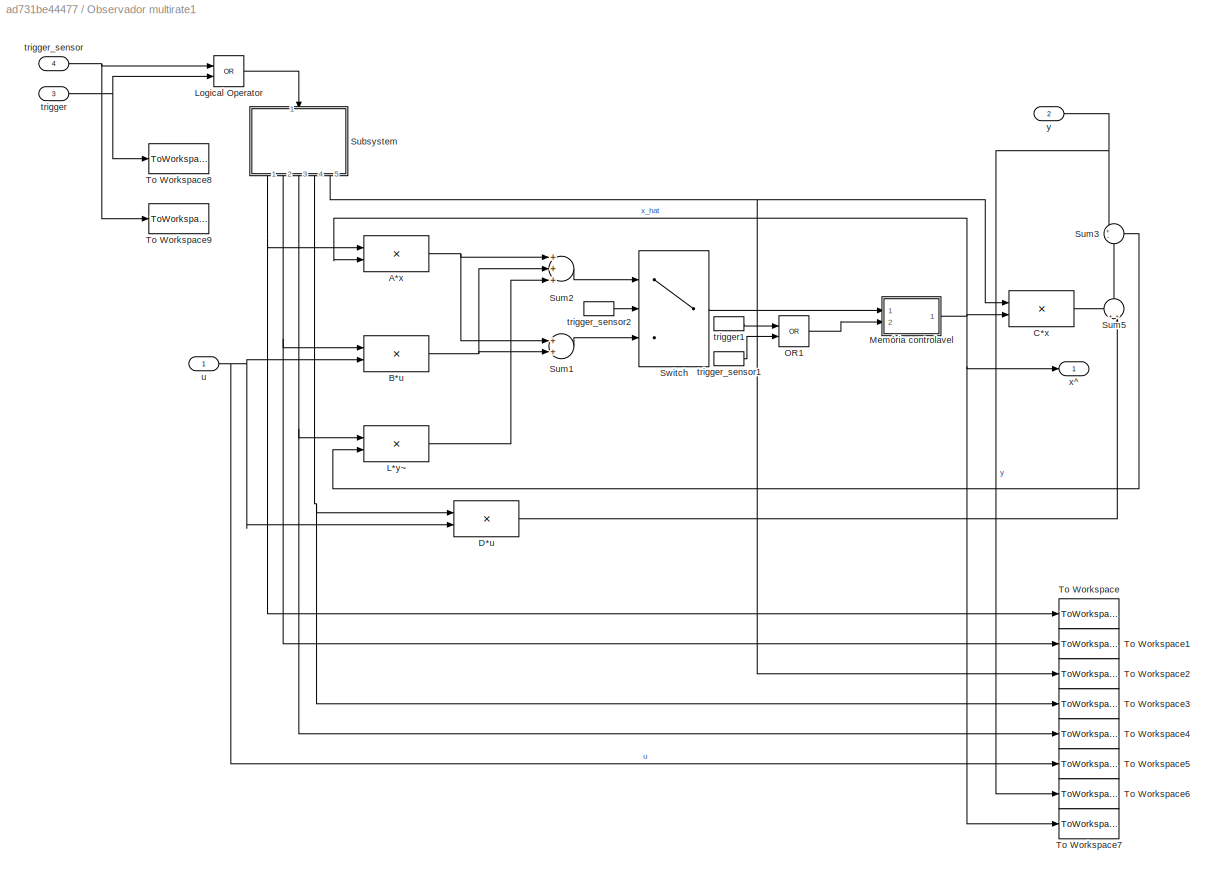
BLOCK [SubSystem] Observador multirate1
  FunctionWithSeparateData = off
  MaskHideContents = off
  MinAlgLoopOccurrences = off
  Opaque = off
  Ports = [4, 1]
  PropExecContextOutsideSubsystem = off
  RTWSystemCode = Auto
  RequestExecContextInheritance = off
BLOCK [Product] Observador multirate1/A*x
  InputSameDT = off
  Multiplication = Matrix(*)
  OutDataTypeStr = Inherit: Inherit via internal rule
  Ports = [2, 1]
  SaturateOnIntegerOverflow = off
BLOCK [Product] Observador multirate1/B*u
  InputSameDT = off
  Multiplication = Matrix(*)
  OutDataTypeStr = Inherit: Inherit via internal rule
  Ports = [2, 1]
  SaturateOnIntegerOverflow = off
BLOCK [Product] Observador multirate1/C*x
  InputSameDT = off
  Multiplication = Matrix(*)
  OutDataTypeStr = Inherit: Inherit via internal rule
  Ports = [2, 1]
  SaturateOnIntegerOverflow = off
BLOCK [Product] Observador multirate1/D*u
  InputSameDT = off
  Multiplication = Matrix(*)
  OutDataTypeStr = Inherit: Inherit via internal rule
  Ports = [2, 1]
  SaturateOnIntegerOverflow = off
BLOCK [Product] Observador multirate1/L*y~
  InputSameDT = off
  Multiplication = Matrix(*)
  OutDataTypeStr = Inherit: Inherit via internal rule
  Ports = [2, 1]
  SaturateOnIntegerOverflow = off
BLOCK [Logic] Observador multirate1/Logical Operator
  AllPortsSameDT = off
  Operator = OR
  OutDataTypeStr = boolean
  Ports = [2, 1]
BLOCK [SubSystem] Observador multirate1/Memória controlavel
  FunctionWithSeparateData = off
  MaskHideContents = off
  MinAlgLoopOccurrences = off
  Opaque = off
  Ports = [2, 1]
  PropExecContextOutsideSubsystem = off
  RTWSystemCode = Auto
  RequestExecContextInheritance = off
BLOCK [Inport] Observador multirate1/Memória controlavel/In
  IconDisplay = Port number
BLOCK [Memory] Observador multirate1/Memória controlavel/Memory2
BLOCK [Outport] Observador multirate1/Memória controlavel/Out
  IconDisplay = Port number
BLOCK [Switch] Observador multirate1/Memória controlavel/Switch2
  InputSameDT = off
  SaturateOnIntegerOverflow = off
BLOCK [Inport] Observador multirate1/Memória controlavel/ctrl
  IconDisplay = Port number
  Port = 2
BLOCK [Logic] Observador multirate1/OR1
  AllPortsSameDT = off
  Operator = OR
  OutDataTypeStr = boolean
  Ports = [2, 1]
BLOCK [SubSystem] Observador multirate1/Subsystem
  FunctionWithSeparateData = off
  MaskHideContents = off
  MinAlgLoopOccurrences = off
  Opaque = off
  Ports = [1, 5]
  PropExecContextOutsideSubsystem = off
  RTWSystemCode = Auto
  RequestExecContextInheritance = off
BLOCK [Outport] Observador multirate1/Subsystem/A
  IconDisplay = Port number
BLOCK [Outport] Observador multirate1/Subsystem/B
  IconDisplay = Port number
  Port = 2
BLOCK [Outport] Observador multirate1/Subsystem/C
  IconDisplay = Port number
  Port = 5
BLOCK [Clock] Observador multirate1/Subsystem/Clock
BLOCK [SubSystem] Observador multirate1/Subsystem/Cálculo da matriz A
  ErrorFcn = Stateflow.Translate.translate
  FunctionWithSeparateData = off
  MaskHideContents = off
  MinAlgLoopOccurrences = off
  Opaque = off
  PermitHierarchicalResolution = ExplicitOnly
  Ports = [1, 1]
  PropExecContextOutsideSubsystem = off
  RTWSystemCode = Auto
  RequestExecContextInheritance = off
  SFBlockType = MATLAB Function
  TreatAsAtomicUnit = on
BLOCK [Demux] Observador multirate1/Subsystem/Cálculo da matriz A/ Demux 
  Outputs = 1
  Ports = [1, 1]
BLOCK [S-Function] Observador multirate1/Subsystem/Cálculo da matriz A/ SFunction 
  EnableBusSupport = on
  FunctionName = sf_sfun
  PortCounts = [1 2]
  Ports = [1, 2]
  Tag = Stateflow S-Function observador_multirate 6
BLOCK [Terminator] Observador multirate1/Subsystem/Cálculo da matriz A/ Terminator 
BLOCK [Outport] Observador multirate1/Subsystem/Cálculo da matriz A/A
  IconDisplay = Port number
BLOCK [Inport] Observador multirate1/Subsystem/Cálculo da matriz A/Ts
  IconDisplay = Port number
BLOCK [SubSystem] Observador multirate1/Subsystem/Cálculo da matriz B
  ErrorFcn = Stateflow.Translate.translate
  FunctionWithSeparateData = off
  MaskHideContents = off
  MinAlgLoopOccurrences = off
  Opaque = off
  PermitHierarchicalResolution = ExplicitOnly
  Ports = [1, 1]
  PropExecContextOutsideSubsystem = off
  RTWSystemCode = Auto
  RequestExecContextInheritance = off
  SFBlockType = MATLAB Function
  TreatAsAtomicUnit = on
BLOCK [Demux] Observador multirate1/Subsystem/Cálculo da matriz B/ Demux 
  Outputs = 1
  Ports = [1, 1]
BLOCK [S-Function] Observador multirate1/Subsystem/Cálculo da matriz B/ SFunction 
  EnableBusSupport = on
  FunctionName = sf_sfun
  PortCounts = [1 2]
  Ports = [1, 2]
  Tag = Stateflow S-Function observador_multirate 7
BLOCK [Terminator] Observador multirate1/Subsystem/Cálculo da matriz B/ Terminator 
BLOCK [Outport] Observador multirate1/Subsystem/Cálculo da matriz B/B
  IconDisplay = Port number
BLOCK [Inport] Observador multirate1/Subsystem/Cálculo da matriz B/Ts
  IconDisplay = Port number
BLOCK [SubSystem] Observador multirate1/Subsystem/Cálculo da matriz C
  ErrorFcn = Stateflow.Translate.translate
  FunctionWithSeparateData = off
  MaskHideContents = off
  MinAlgLoopOccurrences = off
  Opaque = off
  PermitHierarchicalResolution = ExplicitOnly
  Ports = [1, 1]
  PropExecContextOutsideSubsystem = off
  RTWSystemCode = Auto
  RequestExecContextInheritance = off
  SFBlockType = MATLAB Function
  TreatAsAtomicUnit = on
BLOCK [Demux] Observador multirate1/Subsystem/Cálculo da matriz C/ Demux 
  Outputs = 1
  Ports = [1, 1]
BLOCK [S-Function] Observador multirate1/Subsystem/Cálculo da matriz C/ SFunction 
  EnableBusSupport = on
  FunctionName = sf_sfun
  PortCounts = [1 2]
  Ports = [1, 2]
  Tag = Stateflow S-Function observador_multirate 8
BLOCK [Terminator] Observador multirate1/Subsystem/Cálculo da matriz C/ Terminator 
BLOCK [Outport] Observador multirate1/Subsystem/Cálculo da matriz C/C
  IconDisplay = Port number
BLOCK [Inport] Observador multirate1/Subsystem/Cálculo da matriz C/Ts
  IconDisplay = Port number
BLOCK [SubSystem] Observador multirate1/Subsystem/Cálculo da matriz D
  ErrorFcn = Stateflow.Translate.translate
  FunctionWithSeparateData = off
  MaskHideContents = off
  MinAlgLoopOccurrences = off
  Opaque = off
  PermitHierarchicalResolution = ExplicitOnly
  Ports = [1, 1]
  PropExecContextOutsideSubsystem = off
  RTWSystemCode = Auto
  RequestExecContextInheritance = off
  SFBlockType = MATLAB Function
  TreatAsAtomicUnit = on
BLOCK [Demux] Observador multirate1/Subsystem/Cálculo da matriz D/ Demux 
  Outputs = 1
  Ports = [1, 1]
BLOCK [S-Function] Observador multirate1/Subsystem/Cálculo da matriz D/ SFunction 
  EnableBusSupport = on
  FunctionName = sf_sfun
  PortCounts = [1 2]
  Ports = [1, 2]
  Tag = Stateflow S-Function observador_multirate 9
BLOCK [Terminator] Observador multirate1/Subsystem/Cálculo da matriz D/ Terminator 
BLOCK [Outport] Observador multirate1/Subsystem/Cálculo da matriz D/D
  IconDisplay = Port number
BLOCK [Inport] Observador multirate1/Subsystem/Cálculo da matriz D/Ts
  IconDisplay = Port number
BLOCK [SubSystem] Observador multirate1/Subsystem/Cálculo da matriz L
  ErrorFcn = Stateflow.Translate.translate
  FunctionWithSeparateData = off
  MaskHideContents = off
  MinAlgLoopOccurrences = off
  Opaque = off
  PermitHierarchicalResolution = ExplicitOnly
  Ports = [1, 1]
  PropExecContextOutsideSubsystem = off
  RTWSystemCode = Auto
  RequestExecContextInheritance = off
  SFBlockType = MATLAB Function
  TreatAsAtomicUnit = on
BLOCK [Demux] Observador multirate1/Subsystem/Cálculo da matriz L/ Demux 
  Outputs = 1
  Ports = [1, 1]
BLOCK [S-Function] Observador multirate1/Subsystem/Cálculo da matriz L/ SFunction 
  EnableBusSupport = on
  FunctionName = sf_sfun
  PortCounts = [1 2]
  Ports = [1, 2]
  Tag = Stateflow S-Function observador_multirate 10
BLOCK [Terminator] Observador multirate1/Subsystem/Cálculo da matriz L/ Terminator 
BLOCK [Outport] Observador multirate1/Subsystem/Cálculo da matriz L/L
  IconDisplay = Port number
BLOCK [Inport] Observador multirate1/Subsystem/Cálculo da matriz L/Ts
  IconDisplay = Port number
BLOCK [Outport] Observador multirate1/Subsystem/D
  IconDisplay = Port number
  Port = 4
BLOCK [Outport] Observador multirate1/Subsystem/L
  IconDisplay = Port number
  Port = 3
BLOCK [SubSystem] Observador multirate1/Subsystem/Memória controlavel
  FunctionWithSeparateData = off
  MaskHideContents = off
  MinAlgLoopOccurrences = off
  Opaque = off
  Ports = [2, 1]
  PropExecContextOutsideSubsystem = off
  RTWSystemCode = Auto
  RequestExecContextInheritance = off
BLOCK [Inport] Observador multirate1/Subsystem/Memória controlavel/In
  IconDisplay = Port number
BLOCK [Memory] Observador multirate1/Subsystem/Memória controlavel/Memory2
BLOCK [Outport] Observador multirate1/Subsystem/Memória controlavel/Out
  IconDisplay = Port number
BLOCK [Switch] Observador multirate1/Subsystem/Memória controlavel/Switch2
  InputSameDT = off
  SaturateOnIntegerOverflow = off
BLOCK [Inport] Observador multirate1/Subsystem/Memória controlavel/ctrl
  IconDisplay = Port number
  Port = 2
BLOCK [Sum] Observador multirate1/Subsystem/Sum4
  IconShape = round
  InputSameDT = off
  Inputs = +-|
  OutDataTypeStr = Inherit: Inherit via internal rule
  Ports = [2, 1]
  SaturateOnIntegerOverflow = off
BLOCK [Inport] Observador multirate1/Subsystem/trigger
  IconDisplay = Port number
BLOCK [Sum] Observador multirate1/Sum1
  InputSameDT = off
  OutDataTypeStr = Inherit: Inherit via internal rule
  Ports = [2, 1]
  SaturateOnIntegerOverflow = off
BLOCK [Sum] Observador multirate1/Sum2
  InputSameDT = off
  Inputs = +++
  OutDataTypeStr = Inherit: Inherit via internal rule
  Ports = [3, 1]
  SaturateOnIntegerOverflow = off
BLOCK [Sum] Observador multirate1/Sum3
  IconShape = round
  InputSameDT = off
  Inputs = +-
  OutDataTypeStr = Inherit: Inherit via internal rule
  Ports = [2, 1]
  SaturateOnIntegerOverflow = off
BLOCK [Sum] Observador multirate1/Sum5
  IconShape = round
  InputSameDT = off
  Inputs = ++|
  OutDataTypeStr = Inherit: Inherit via internal rule
  Ports = [2, 1]
  SaturateOnIntegerOverflow = off
BLOCK [Switch] Observador multirate1/Switch
  Criteria = u2 > Threshold
  InputSameDT = off
  SaturateOnIntegerOverflow = off
BLOCK [ToWorkspace] Observador multirate1/To Workspace
  MaxDataPoints = inf
  Ports = [1]
  SampleTime = -1
  VariableName = simA
BLOCK [ToWorkspace] Observador multirate1/To Workspace1
  MaxDataPoints = inf
  Ports = [1]
  SampleTime = -1
  VariableName = simB
BLOCK [ToWorkspace] Observador multirate1/To Workspace2
  MaxDataPoints = inf
  Ports = [1]
  SampleTime = -1
  VariableName = simC
BLOCK [ToWorkspace] Observador multirate1/To Workspace3
  MaxDataPoints = inf
  Ports = [1]
  SampleTime = -1
  VariableName = simD
BLOCK [ToWorkspace] Observador multirate1/To Workspace4
  MaxDataPoints = inf
  Ports = [1]
  SampleTime = -1
  VariableName = simL
BLOCK [ToWorkspace] Observador multirate1/To Workspace5
  MaxDataPoints = inf
  Ports = [1]
  SampleTime = -1
  VariableName = simu
BLOCK [ToWorkspace] Observador multirate1/To Workspace6
  MaxDataPoints = inf
  Ports = [1]
  SampleTime = -1
  VariableName = simy
BLOCK [ToWorkspace] Observador multirate1/To Workspace7
  MaxDataPoints = inf
  Ports = [1]
  SampleTime = -1
  VariableName = simx_hat
BLOCK [ToWorkspace] Observador multirate1/To Workspace8
  MaxDataPoints = inf
  Ports = [1]
  SampleTime = -1
  VariableName = trigger
BLOCK [ToWorkspace] Observador multirate1/To Workspace9
  MaxDataPoints = inf
  Ports = [1]
  SampleTime = -1
  VariableName = trigger_sens
BLOCK [Inport] Observador multirate1/trigger
  IconDisplay = Port number
  Port = 3
BLOCK [InportShadow] Observador multirate1/trigger1
  IconDisplay = Port number
  LatchByDelayingOutsideSignal = off
  LatchInputForFeedbackSignals = off
  Port = 3
BLOCK [Inport] Observador multirate1/trigger_sensor
  IconDisplay = Port number
  Port = 4
BLOCK [InportShadow] Observador multirate1/trigger_sensor1
  IconDisplay = Port number
  LatchByDelayingOutsideSignal = off
  LatchInputForFeedbackSignals = off
  Port = 4
BLOCK [InportShadow] Observador multirate1/trigger_sensor2
  IconDisplay = Port number
  LatchByDelayingOutsideSignal = off
  LatchInputForFeedbackSignals = off
  Port = 4
BLOCK [Inport] Observador multirate1/u
  IconDisplay = Port number
BLOCK [Outport] Observador multirate1/x^
  IconDisplay = Port number
BLOCK [Inport] Observador multirate1/y
  IconDisplay = Port number
  Port = 2
BLOCK [DiscretePulseGenerator] Pulse Generator
  Period = 0.5
  Ports = [0, 1]
  PulseType = Time based
  PulseWidth = 50
BLOCK [DiscretePulseGenerator] Pulse Generator1
  Period = 0.015
  Ports = [0, 1]
  PulseType = Time based
  PulseWidth = 50
BLOCK [Scope] Scope1
  DataFormat = StructureWithTime
  Floating = off
  LegendLocations = 0.91365     0.90978      0.0675     0.04439\n0.91365     0.43876      0.0675     0.04439
  LimitDataPoints = off
  NumInputPorts = 2
  Ports = [2]
  SampleTime = 0
  SaveName = ScopeData1
  ShowLegends = on
  TimeRange = 10
  YMax = 700~2400
  YMin = -700~100
BLOCK [Scope] Scope2
  DataFormat = StructureWithTime
  Floating = off
  LegendLocations = 0.91365     0.87115      0.0675    0.083025
  LimitDataPoints = off
  NumInputPorts = 1
  Ports = [1]
  SampleTime = 0
  ShowLegends = on
  TimeRange = 10
  YMax = 700
  YMin = -700
BLOCK [Step] Step
  After = 20
  SampleTime = 0
  Time = 0
BLOCK [Step] Step1
  After = -40
  SampleTime = 0
  Time = 5
BLOCK [Sum] Sum
  IconShape = round
  InputSameDT = off
  Inputs = |++
  OutDataTypeStr = Inherit: Inherit via internal rule
  Ports = [2, 1]
  SaturateOnIntegerOverflow = off
BLOCK [Sum] Sum1
  IconShape = round
  InputSameDT = off
  Inputs = |++
  OutDataTypeStr = Inherit: Inherit via internal rule
  Ports = [2, 1]
  SaturateOnIntegerOverflow = off
BLOCK [ToWorkspace] To Workspace
  MaxDataPoints = inf
  Ports = [1]
  SampleTime = -1
  VariableName = simx
ANNOTATION Observador multirate (cada atualizacao com sua taxa individual)/Atualizacao com sensor/Subsystem1/Memória controlavel: Memória controlável Se "ctrl" = 1, "Out" = "In" Se "ctrl" = 0, "Out" mantém mesmo valor
ANNOTATION Observador multirate (cada atualizacao com sua taxa individual)/Atualizacao sem sensor /Subsystem1/Memória controlavel: Memória controlável Se "ctrl" = 1, "Out" = "In" Se "ctrl" = 0, "Out" mantém mesmo valor
ANNOTATION Observador multirate (cada atualizacao com sua taxa individual)/Memória controlavel: Memória controlável Se "ctrl" = 1, "Out" = "In" Se "ctrl" = 0, "Out" mantém mesmo valor
ANNOTATION Observador multirate/Memória controlavel: Memória controlável Se "ctrl" = 1, "Out" = "In" Se "ctrl" = 0, "Out" mantém mesmo valor
ANNOTATION Observador multirate/Subsystem/Memória controlavel: Memória controlável Se "ctrl" = 1, "Out" = "In" Se "ctrl" = 0, "Out" mantém mesmo valor
ANNOTATION Observador multirate1/Memória controlavel: Memória controlável Se "ctrl" = 1, "Out" = "In" Se "ctrl" = 0, "Out" mantém mesmo valor
ANNOTATION Observador multirate1/Subsystem/Memória controlavel: Memória controlável Se "ctrl" = 1, "Out" = "In" Se "ctrl" = 0, "Out" mantém mesmo valor
LINE Bus Creator2:1 -> Scope2:1
LINE Bus Creator:1 -> Scope1:1
LINE Demux1:1 -> Bus Creator2:2
LINE Demux2:1 -> Bus Creator:2
LINE Demux2:2 -> Bus Creator1:2
NET Demux:1 -> Bus Creator2:1, Bus Creator:1, To Workspace:1
LINE Demux:2 -> Bus Creator1:1
LINE Detect Change1:1 -> Observador multirate1:4
LINE Detect Change:1 -> Observador multirate:3
NET Detect Decrease1:1 -> Gain4:1, Observador multirate (cada atualizacao com sua taxa individual):3
NET Detect Decrease:1 -> Gain3:1, Observador multirate (cada atualizacao com sua taxa individual):2, Observador multirate1:3
NET Encoder:1 -> Detect Change1:1, Detect Change:1, Observador multirate1:2, Observador multirate:2
LINE Gain1:1 -> Sum:2
NET Gain2:1 -> Encoder:1, Observador multirate (cada atualizacao com sua taxa individual):4
LINE Gain3:1 -> Bus Creator2:3
LINE Gain4:1 -> Bus Creator2:4
LINE Gain:1 -> Sum:1
NET Integrator:1 -> Demux:1, Gain1:1, Gain2:1
LINE Observador multirate (cada atualizacao com sua taxa individual)/Atualizacao com sensor/A*x:1 -> Observador multirate (cada atualizacao com sua taxa individual)/Atualizacao com sensor/Sum4:1
LINE Observador multirate (cada atualizacao com sua taxa individual)/Atualizacao com sensor/B*u:1 -> Observador multirate (cada atualizacao com sua taxa individual)/Atualizacao com sensor/Sum4:2
LINE Observador multirate (cada atualizacao com sua taxa individual)/Atualizacao com sensor/L*y~:1 -> Observador multirate (cada atualizacao com sua taxa individual)/Atualizacao com sensor/Sum4:3
NET Observador multirate (cada atualizacao com sua taxa individual)/Atualizacao com sensor/Subsystem1/Clock:1 -> Observador multirate (cada atualizacao com sua taxa individual)/Atualizacao com sensor/Subsystem1/Memória controlavel:1, Observador multirate (cada atualizacao com sua taxa individual)/Atualizacao com sensor/Subsystem1/Sum4:1
LINE Observador multirate (cada atualizacao com sua taxa individual)/Atualizacao com sensor/Subsystem1/Cálculo da matriz A:1 -> Observador multirate (cada atualizacao com sua taxa individual)/Atualizacao com sensor/Subsystem1/A:1
LINE Observador multirate (cada atualizacao com sua taxa individual)/Atualizacao com sensor/Subsystem1/Cálculo da matriz B:1 -> Observador multirate (cada atualizacao com sua taxa individual)/Atualizacao com sensor/Subsystem1/B:1
LINE Observador multirate (cada atualizacao com sua taxa individual)/Atualizacao com sensor/Subsystem1/Cálculo da matriz C:1 -> Observador multirate (cada atualizacao com sua taxa individual)/Atualizacao com sensor/Subsystem1/C:1
LINE Observador multirate (cada atualizacao com sua taxa individual)/Atualizacao com sensor/Subsystem1/Cálculo da matriz D:1 -> Observador multirate (cada atualizacao com sua taxa individual)/Atualizacao com sensor/Subsystem1/D:1
LINE Observador multirate (cada atualizacao com sua taxa individual)/Atualizacao com sensor/Subsystem1/Cálculo da matriz L:1 -> Observador multirate (cada atualizacao com sua taxa individual)/Atualizacao com sensor/Subsystem1/L:1
LINE Observador multirate (cada atualizacao com sua taxa individual)/Atualizacao com sensor/Subsystem1/Memória controlavel/In:1 -> Observador multirate (cada atualizacao com sua taxa individual)/Atualizacao com sensor/Subsystem1/Memória controlavel/Switch2:1
NET Observador multirate (cada atualizacao com sua taxa individual)/Atualizacao com sensor/Subsystem1/Memória controlavel/Memory2:1 -> Observador multirate (cada atualizacao com sua taxa individual)/Atualizacao com sensor/Subsystem1/Memória controlavel/Out:1, Observador multirate (cada atualizacao com sua taxa individual)/Atualizacao com sensor/Subsystem1/Memória controlavel/Switch2:3
LINE Observador multirate (cada atualizacao com sua taxa individual)/Atualizacao com sensor/Subsystem1/Memória controlavel/Switch2:1 -> Observador multirate (cada atualizacao com sua taxa individual)/Atualizacao com sensor/Subsystem1/Memória controlavel/Memory2:1
LINE Observador multirate (cada atualizacao com sua taxa individual)/Atualizacao com sensor/Subsystem1/Memória controlavel/ctrl:1 -> Observador multirate (cada atualizacao com sua taxa individual)/Atualizacao com sensor/Subsystem1/Memória controlavel/Switch2:2
LINE Observador multirate (cada atualizacao com sua taxa individual)/Atualizacao com sensor/Subsystem1/Memória controlavel:1 -> Observador multirate (cada atualizacao com sua taxa individual)/Atualizacao com sensor/Subsystem1/Sum4:2
NET Observador multirate (cada atualizacao com sua taxa individual)/Atualizacao com sensor/Subsystem1/Sum4:1 -> Observador multirate (cada atualizacao com sua taxa individual)/Atualizacao com sensor/Subsystem1/Cálculo da matriz A:1, Observador multirate (cada atualizacao com sua taxa individual)/Atualizacao com sensor/Subsystem1/Cálculo da matriz B:1, Observador multirate (cada atualizacao com sua taxa individual)/Atualizacao com sensor/Subsystem1/Cálculo da matriz C:1, Observador multirate (cada atualizacao com sua taxa individual)/Atualizacao com sensor/Subsystem1/Cálculo da matriz D:1, Observador multirate (cada atualizacao com sua taxa individual)/Atualizacao com sensor/Subsystem1/Cálculo da matriz L:1
LINE Observador multirate (cada atualizacao com sua taxa individual)/Atualizacao com sensor/Subsystem1/trigger:1 -> Observador multirate (cada atualizacao com sua taxa individual)/Atualizacao com sensor/Subsystem1/Memória controlavel:2
LINE Observador multirate (cada atualizacao com sua taxa individual)/Atualizacao com sensor/Subsystem1:1 -> Observador multirate (cada atualizacao com sua taxa individual)/Atualizacao com sensor/A*x:1
LINE Observador multirate (cada atualizacao com sua taxa individual)/Atualizacao com sensor/Subsystem1:2 -> Observador multirate (cada atualizacao com sua taxa individual)/Atualizacao com sensor/B*u:1
LINE Observador multirate (cada atualizacao com sua taxa individual)/Atualizacao com sensor/Subsystem1:3 -> Observador multirate (cada atualizacao com sua taxa individual)/Atualizacao com sensor/L*y~:1
LINE Observador multirate (cada atualizacao com sua taxa individual)/Atualizacao com sensor/Sum4:1 -> Observador multirate (cada atualizacao com sua taxa individual)/Atualizacao com sensor/out:1
LINE Observador multirate (cada atualizacao com sua taxa individual)/Atualizacao com sensor/trigger:1 -> Observador multirate (cada atualizacao com sua taxa individual)/Atualizacao com sensor/Subsystem1:1
LINE Observador multirate (cada atualizacao com sua taxa individual)/Atualizacao com sensor/u:1 -> Observador multirate (cada atualizacao com sua taxa individual)/Atualizacao com sensor/B*u:2
LINE Observador multirate (cada atualizacao com sua taxa individual)/Atualizacao com sensor/x:1 -> Observador multirate (cada atualizacao com sua taxa individual)/Atualizacao com sensor/A*x:2
LINE Observador multirate (cada atualizacao com sua taxa individual)/Atualizacao com sensor/y~:1 -> Observador multirate (cada atualizacao com sua taxa individual)/Atualizacao com sensor/L*y~:2
LINE Observador multirate (cada atualizacao com sua taxa individual)/Atualizacao com sensor:1 -> Observador multirate (cada atualizacao com sua taxa individual)/Switch1:1
LINE Observador multirate (cada atualizacao com sua taxa individual)/Atualizacao sem sensor /A*x:1 -> Observador multirate (cada atualizacao com sua taxa individual)/Atualizacao sem sensor /Sum4:1
LINE Observador multirate (cada atualizacao com sua taxa individual)/Atualizacao sem sensor /B*u:1 -> Observador multirate (cada atualizacao com sua taxa individual)/Atualizacao sem sensor /Sum4:2
NET Observador multirate (cada atualizacao com sua taxa individual)/Atualizacao sem sensor /Subsystem1/Clock:1 -> Observador multirate (cada atualizacao com sua taxa individual)/Atualizacao sem sensor /Subsystem1/Memória controlavel:1, Observador multirate (cada atualizacao com sua taxa individual)/Atualizacao sem sensor /Subsystem1/Sum4:1
LINE Observador multirate (cada atualizacao com sua taxa individual)/Atualizacao sem sensor /Subsystem1/Cálculo da matriz A:1 -> Observador multirate (cada atualizacao com sua taxa individual)/Atualizacao sem sensor /Subsystem1/A:1
LINE Observador multirate (cada atualizacao com sua taxa individual)/Atualizacao sem sensor /Subsystem1/Cálculo da matriz B:1 -> Observador multirate (cada atualizacao com sua taxa individual)/Atualizacao sem sensor /Subsystem1/B:1
LINE Observador multirate (cada atualizacao com sua taxa individual)/Atualizacao sem sensor /Subsystem1/Cálculo da matriz C:1 -> Observador multirate (cada atualizacao com sua taxa individual)/Atualizacao sem sensor /Subsystem1/C:1
LINE Observador multirate (cada atualizacao com sua taxa individual)/Atualizacao sem sensor /Subsystem1/Cálculo da matriz D:1 -> Observador multirate (cada atualizacao com sua taxa individual)/Atualizacao sem sensor /Subsystem1/D:1
LINE Observador multirate (cada atualizacao com sua taxa individual)/Atualizacao sem sensor /Subsystem1/Cálculo da matriz L:1 -> Observador multirate (cada atualizacao com sua taxa individual)/Atualizacao sem sensor /Subsystem1/L:1
LINE Observador multirate (cada atualizacao com sua taxa individual)/Atualizacao sem sensor /Subsystem1/Memória controlavel/In:1 -> Observador multirate (cada atualizacao com sua taxa individual)/Atualizacao sem sensor /Subsystem1/Memória controlavel/Switch2:1
NET Observador multirate (cada atualizacao com sua taxa individual)/Atualizacao sem sensor /Subsystem1/Memória controlavel/Memory2:1 -> Observador multirate (cada atualizacao com sua taxa individual)/Atualizacao sem sensor /Subsystem1/Memória controlavel/Out:1, Observador multirate (cada atualizacao com sua taxa individual)/Atualizacao sem sensor /Subsystem1/Memória controlavel/Switch2:3
LINE Observador multirate (cada atualizacao com sua taxa individual)/Atualizacao sem sensor /Subsystem1/Memória controlavel/Switch2:1 -> Observador multirate (cada atualizacao com sua taxa individual)/Atualizacao sem sensor /Subsystem1/Memória controlavel/Memory2:1
LINE Observador multirate (cada atualizacao com sua taxa individual)/Atualizacao sem sensor /Subsystem1/Memória controlavel/ctrl:1 -> Observador multirate (cada atualizacao com sua taxa individual)/Atualizacao sem sensor /Subsystem1/Memória controlavel/Switch2:2
LINE Observador multirate (cada atualizacao com sua taxa individual)/Atualizacao sem sensor /Subsystem1/Memória controlavel:1 -> Observador multirate (cada atualizacao com sua taxa individual)/Atualizacao sem sensor /Subsystem1/Sum4:2
NET Observador multirate (cada atualizacao com sua taxa individual)/Atualizacao sem sensor /Subsystem1/Sum4:1 -> Observador multirate (cada atualizacao com sua taxa individual)/Atualizacao sem sensor /Subsystem1/Cálculo da matriz A:1, Observador multirate (cada atualizacao com sua taxa individual)/Atualizacao sem sensor /Subsystem1/Cálculo da matriz B:1, Observador multirate (cada atualizacao com sua taxa individual)/Atualizacao sem sensor /Subsystem1/Cálculo da matriz C:1, Observador multirate (cada atualizacao com sua taxa individual)/Atualizacao sem sensor /Subsystem1/Cálculo da matriz D:1, Observador multirate (cada atualizacao com sua taxa individual)/Atualizacao sem sensor /Subsystem1/Cálculo da matriz L:1
LINE Observador multirate (cada atualizacao com sua taxa individual)/Atualizacao sem sensor /Subsystem1/trigger:1 -> Observador multirate (cada atualizacao com sua taxa individual)/Atualizacao sem sensor /Subsystem1/Memória controlavel:2
LINE Observador multirate (cada atualizacao com sua taxa individual)/Atualizacao sem sensor /Subsystem1:1 -> Observador multirate (cada atualizacao com sua taxa individual)/Atualizacao sem sensor /A*x:1
LINE Observador multirate (cada atualizacao com sua taxa individual)/Atualizacao sem sensor /Subsystem1:2 -> Observador multirate (cada atualizacao com sua taxa individual)/Atualizacao sem sensor /B*u:1
LINE Observador multirate (cada atualizacao com sua taxa individual)/Atualizacao sem sensor /Sum4:1 -> Observador multirate (cada atualizacao com sua taxa individual)/Atualizacao sem sensor /out:1
LINE Observador multirate (cada atualizacao com sua taxa individual)/Atualizacao sem sensor /trigger:1 -> Observador multirate (cada atualizacao com sua taxa individual)/Atualizacao sem sensor /Subsystem1:1
LINE Observador multirate (cada atualizacao com sua taxa individual)/Atualizacao sem sensor /u:1 -> Observador multirate (cada atualizacao com sua taxa individual)/Atualizacao sem sensor /B*u:2
LINE Observador multirate (cada atualizacao com sua taxa individual)/Atualizacao sem sensor /x:1 -> Observador multirate (cada atualizacao com sua taxa individual)/Atualizacao sem sensor /A*x:2
LINE Observador multirate (cada atualizacao com sua taxa individual)/Atualizacao sem sensor :1 -> Observador multirate (cada atualizacao com sua taxa individual)/Switch1:3
LINE Observador multirate (cada atualizacao com sua taxa individual)/Gain1:1 -> Observador multirate (cada atualizacao com sua taxa individual)/Sum4:1
LINE Observador multirate (cada atualizacao com sua taxa individual)/Gain:1 -> Observador multirate (cada atualizacao com sua taxa individual)/Sum4:2
LINE Observador multirate (cada atualizacao com sua taxa individual)/Logical Operator:1 -> Observador multirate (cada atualizacao com sua taxa individual)/Atualizacao sem sensor :1
LINE Observador multirate (cada atualizacao com sua taxa individual)/Memória controlavel/In:1 -> Observador multirate (cada atualizacao com sua taxa individual)/Memória controlavel/Switch2:1
NET Observador multirate (cada atualizacao com sua taxa individual)/Memória controlavel/Memory2:1 -> Observador multirate (cada atualizacao com sua taxa individual)/Memória controlavel/Out:1, Observador multirate (cada atualizacao com sua taxa individual)/Memória controlavel/Switch2:3
LINE Observador multirate (cada atualizacao com sua taxa individual)/Memória controlavel/Switch2:1 -> Observador multirate (cada atualizacao com sua taxa individual)/Memória controlavel/Memory2:1
LINE Observador multirate (cada atualizacao com sua taxa individual)/Memória controlavel/ctrl:1 -> Observador multirate (cada atualizacao com sua taxa individual)/Memória controlavel/Switch2:2
NET Observador multirate (cada atualizacao com sua taxa individual)/Memória controlavel:1 -> Observador multirate (cada atualizacao com sua taxa individual)/Atualizacao com sensor:2, Observador multirate (cada atualizacao com sua taxa individual)/Atualizacao sem sensor :2, Observador multirate (cada atualizacao com sua taxa individual)/Gain:1, Observador multirate (cada atualizacao com sua taxa individual)/x^:1
LINE Observador multirate (cada atualizacao com sua taxa individual)/OR1:1 -> Observador multirate (cada atualizacao com sua taxa individual)/Memória controlavel:2
LINE Observador multirate (cada atualizacao com sua taxa individual)/Sum3:1 -> Observador multirate (cada atualizacao com sua taxa individual)/Atualizacao com sensor:4
LINE Observador multirate (cada atualizacao com sua taxa individual)/Sum4:1 -> Observador multirate (cada atualizacao com sua taxa individual)/Sum3:1
LINE Observador multirate (cada atualizacao com sua taxa individual)/Switch1:1 -> Observador multirate (cada atualizacao com sua taxa individual)/Memória controlavel:1
LINE Observador multirate (cada atualizacao com sua taxa individual)/trigger1:1 -> Observador multirate (cada atualizacao com sua taxa individual)/OR1:1
LINE Observador multirate (cada atualizacao com sua taxa individual)/trigger:1 -> Observador multirate (cada atualizacao com sua taxa individual)/Logical Operator:2
LINE Observador multirate (cada atualizacao com sua taxa individual)/trigger_sensor1:1 -> Observador multirate (cada atualizacao com sua taxa individual)/OR1:2
LINE Observador multirate (cada atualizacao com sua taxa individual)/trigger_sensor2:1 -> Observador multirate (cada atualizacao com sua taxa individual)/Switch1:2
NET Observador multirate (cada atualizacao com sua taxa individual)/trigger_sensor:1 -> Observador multirate (cada atualizacao com sua taxa individual)/Atualizacao com sensor:1, Observador multirate (cada atualizacao com sua taxa individual)/Logical Operator:1
NET Observador multirate (cada atualizacao com sua taxa individual)/u1:1 -> Observador multirate (cada atualizacao com sua taxa individual)/Atualizacao com sensor:3, Observador multirate (cada atualizacao com sua taxa individual)/Atualizacao sem sensor :3
LINE Observador multirate (cada atualizacao com sua taxa individual)/u:1 -> Observador multirate (cada atualizacao com sua taxa individual)/Gain1:1
LINE Observador multirate (cada atualizacao com sua taxa individual)/y:1 -> Observador multirate (cada atualizacao com sua taxa individual)/Sum3:2
NET Observador multirate (cada atualizacao com sua taxa individual):1 -> Demux1:1, Demux2:1
LINE Observador multirate/A*x:1 -> Observador multirate/Sum2:3
LINE Observador multirate/B*u:1 -> Observador multirate/Sum2:2
LINE Observador multirate/C*x:1 -> Observador multirate/Sum5:1
LINE Observador multirate/D*u:1 -> Observador multirate/Sum5:2
LINE Observador multirate/L*y~:1 -> Observador multirate/Sum2:1
LINE Observador multirate/Memória controlavel/In:1 -> Observador multirate/Memória controlavel/Switch2:1
NET Observador multirate/Memória controlavel/Memory2:1 -> Observador multirate/Memória controlavel/Out:1, Observador multirate/Memória controlavel/Switch2:3
LINE Observador multirate/Memória controlavel/Switch2:1 -> Observador multirate/Memória controlavel/Memory2:1
LINE Observador multirate/Memória controlavel/ctrl:1 -> Observador multirate/Memória controlavel/Switch2:2
NET Observador multirate/Memória controlavel:1 -> Observador multirate/A*x:2, Observador multirate/C*x:2, Observador multirate/x^:1
NET Observador multirate/Subsystem/Clock:1 -> Observador multirate/Subsystem/Memória controlavel:1, Observador multirate/Subsystem/Sum4:1
LINE Observador multirate/Subsystem/Cálculo da matriz A:1 -> Observador multirate/Subsystem/A:1
LINE Observador multirate/Subsystem/Cálculo da matriz B:1 -> Observador multirate/Subsystem/B:1
LINE Observador multirate/Subsystem/Cálculo da matriz C:1 -> Observador multirate/Subsystem/C:1
LINE Observador multirate/Subsystem/Cálculo da matriz D:1 -> Observador multirate/Subsystem/D:1
LINE Observador multirate/Subsystem/Cálculo da matriz L:1 -> Observador multirate/Subsystem/L:1
LINE Observador multirate/Subsystem/Memória controlavel/In:1 -> Observador multirate/Subsystem/Memória controlavel/Switch2:1
NET Observador multirate/Subsystem/Memória controlavel/Memory2:1 -> Observador multirate/Subsystem/Memória controlavel/Out:1, Observador multirate/Subsystem/Memória controlavel/Switch2:3
LINE Observador multirate/Subsystem/Memória controlavel/Switch2:1 -> Observador multirate/Subsystem/Memória controlavel/Memory2:1
LINE Observador multirate/Subsystem/Memória controlavel/ctrl:1 -> Observador multirate/Subsystem/Memória controlavel/Switch2:2
LINE Observador multirate/Subsystem/Memória controlavel:1 -> Observador multirate/Subsystem/Sum4:2
NET Observador multirate/Subsystem/Sum4:1 -> Observador multirate/Subsystem/Cálculo da matriz A:1, Observador multirate/Subsystem/Cálculo da matriz B:1, Observador multirate/Subsystem/Cálculo da matriz C:1, Observador multirate/Subsystem/Cálculo da matriz D:1, Observador multirate/Subsystem/Cálculo da matriz L:1
LINE Observador multirate/Subsystem/clk:1 -> Observador multirate/Subsystem/Memória controlavel:2
LINE Observador multirate/Subsystem:1 -> Observador multirate/A*x:1
LINE Observador multirate/Subsystem:2 -> Observador multirate/B*u:1
LINE Observador multirate/Subsystem:3 -> Observador multirate/C*x:1
LINE Observador multirate/Subsystem:4 -> Observador multirate/D*u:1
LINE Observador multirate/Subsystem:5 -> Observador multirate/L*y~:1
LINE Observador multirate/Sum2:1 -> Observador multirate/Memória controlavel:1
LINE Observador multirate/Sum3:1 -> Observador multirate/L*y~:2
LINE Observador multirate/Sum5:1 -> Observador multirate/Sum3:2
LINE Observador multirate/clk:1 -> Observador multirate/Subsystem:1
LINE Observador multirate/clk_1:1 -> Observador multirate/Memória controlavel:2
NET Observador multirate/u:1 -> Observador multirate/B*u:2, Observador multirate/D*u:2
LINE Observador multirate/y:1 -> Observador multirate/Sum3:1
NET Observador multirate1/A*x:1 -> Observador multirate1/Sum1:1, Observador multirate1/Sum2:1
NET Observador multirate1/B*u:1 -> Observador multirate1/Sum1:2, Observador multirate1/Sum2:2
LINE Observador multirate1/C*x:1 -> Observador multirate1/Sum5:1
LINE Observador multirate1/D*u:1 -> Observador multirate1/Sum5:2
LINE Observador multirate1/L*y~:1 -> Observador multirate1/Sum2:3
LINE Observador multirate1/Logical Operator:1 -> Observador multirate1/Subsystem:1
LINE Observador multirate1/Memória controlavel/In:1 -> Observador multirate1/Memória controlavel/Switch2:1
NET Observador multirate1/Memória controlavel/Memory2:1 -> Observador multirate1/Memória controlavel/Out:1, Observador multirate1/Memória controlavel/Switch2:3
LINE Observador multirate1/Memória controlavel/Switch2:1 -> Observador multirate1/Memória controlavel/Memory2:1
LINE Observador multirate1/Memória controlavel/ctrl:1 -> Observador multirate1/Memória controlavel/Switch2:2
NET Observador multirate1/Memória controlavel:1 -> Observador multirate1/A*x:2, Observador multirate1/C*x:2, Observador multirate1/To Workspace7:1, Observador multirate1/x^:1
LINE Observador multirate1/OR1:1 -> Observador multirate1/Memória controlavel:2
NET Observador multirate1/Subsystem/Clock:1 -> Observador multirate1/Subsystem/Memória controlavel:1, Observador multirate1/Subsystem/Sum4:1
LINE Observador multirate1/Subsystem/Cálculo da matriz A:1 -> Observador multirate1/Subsystem/A:1
LINE Observador multirate1/Subsystem/Cálculo da matriz B:1 -> Observador multirate1/Subsystem/B:1
LINE Observador multirate1/Subsystem/Cálculo da matriz C:1 -> Observador multirate1/Subsystem/C:1
LINE Observador multirate1/Subsystem/Cálculo da matriz D:1 -> Observador multirate1/Subsystem/D:1
LINE Observador multirate1/Subsystem/Cálculo da matriz L:1 -> Observador multirate1/Subsystem/L:1
LINE Observador multirate1/Subsystem/Memória controlavel/In:1 -> Observador multirate1/Subsystem/Memória controlavel/Switch2:1
NET Observador multirate1/Subsystem/Memória controlavel/Memory2:1 -> Observador multirate1/Subsystem/Memória controlavel/Out:1, Observador multirate1/Subsystem/Memória controlavel/Switch2:3
LINE Observador multirate1/Subsystem/Memória controlavel/Switch2:1 -> Observador multirate1/Subsystem/Memória controlavel/Memory2:1
LINE Observador multirate1/Subsystem/Memória controlavel/ctrl:1 -> Observador multirate1/Subsystem/Memória controlavel/Switch2:2
LINE Observador multirate1/Subsystem/Memória controlavel:1 -> Observador multirate1/Subsystem/Sum4:2
NET Observador multirate1/Subsystem/Sum4:1 -> Observador multirate1/Subsystem/Cálculo da matriz A:1, Observador multirate1/Subsystem/Cálculo da matriz B:1, Observador multirate1/Subsystem/Cálculo da matriz C:1, Observador multirate1/Subsystem/Cálculo da matriz D:1, Observador multirate1/Subsystem/Cálculo da matriz L:1
LINE Observador multirate1/Subsystem/trigger:1 -> Observador multirate1/Subsystem/Memória controlavel:2
NET Observador multirate1/Subsystem:1 -> Observador multirate1/A*x:1, Observador multirate1/To Workspace:1
NET Observador multirate1/Subsystem:2 -> Observador multirate1/B*u:1, Observador multirate1/To Workspace1:1
NET Observador multirate1/Subsystem:3 -> Observador multirate1/L*y~:1, Observador multirate1/To Workspace4:1
NET Observador multirate1/Subsystem:4 -> Observador multirate1/D*u:1, Observador multirate1/To Workspace3:1
NET Observador multirate1/Subsystem:5 -> Observador multirate1/C*x:1, Observador multirate1/To Workspace2:1
LINE Observador multirate1/Sum1:1 -> Observador multirate1/Switch:3
LINE Observador multirate1/Sum2:1 -> Observador multirate1/Switch:1
LINE Observador multirate1/Sum3:1 -> Observador multirate1/L*y~:2
LINE Observador multirate1/Sum5:1 -> Observador multirate1/Sum3:2
LINE Observador multirate1/Switch:1 -> Observador multirate1/Memória controlavel:1
LINE Observador multirate1/trigger1:1 -> Observador multirate1/OR1:1
NET Observador multirate1/trigger:1 -> Observador multirate1/Logical Operator:2, Observador multirate1/To Workspace8:1
LINE Observador multirate1/trigger_sensor1:1 -> Observador multirate1/OR1:2
LINE Observador multirate1/trigger_sensor2:1 -> Observador multirate1/Switch:2
NET Observador multirate1/trigger_sensor:1 -> Observador multirate1/Logical Operator:1, Observador multirate1/To Workspace9:1
NET Observador multirate1/u:1 -> Observador multirate1/B*u:2, Observador multirate1/D*u:2, Observador multirate1/To Workspace5:1
NET Observador multirate1/y:1 -> Observador multirate1/Sum3:1, Observador multirate1/To Workspace6:1
LINE Pulse Generator1:1 -> Detect Decrease1:1
LINE Pulse Generator:1 -> Detect Decrease:1
LINE Step1:1 -> Sum1:2
LINE Step:1 -> Sum1:1
NET Sum1:1 -> Gain:1, Observador multirate (cada atualizacao com sua taxa individual):1, Observador multirate1:1, Observador multirate:1
LINE Sum:1 -> Integrator:1
note: NET lines group one-source signal fan-out (src -> all destinations, sorted); 1:1 wires keep LINE
